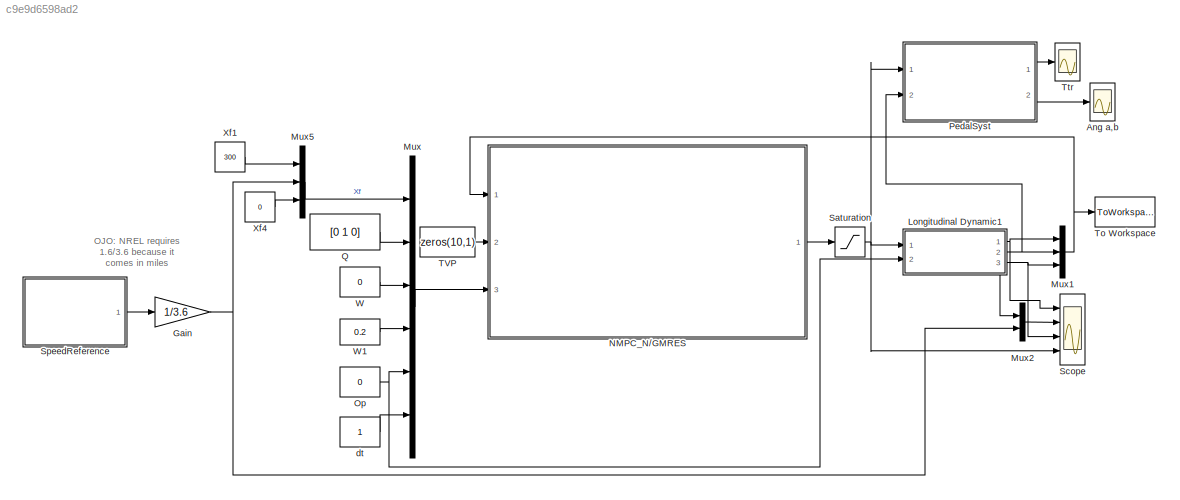
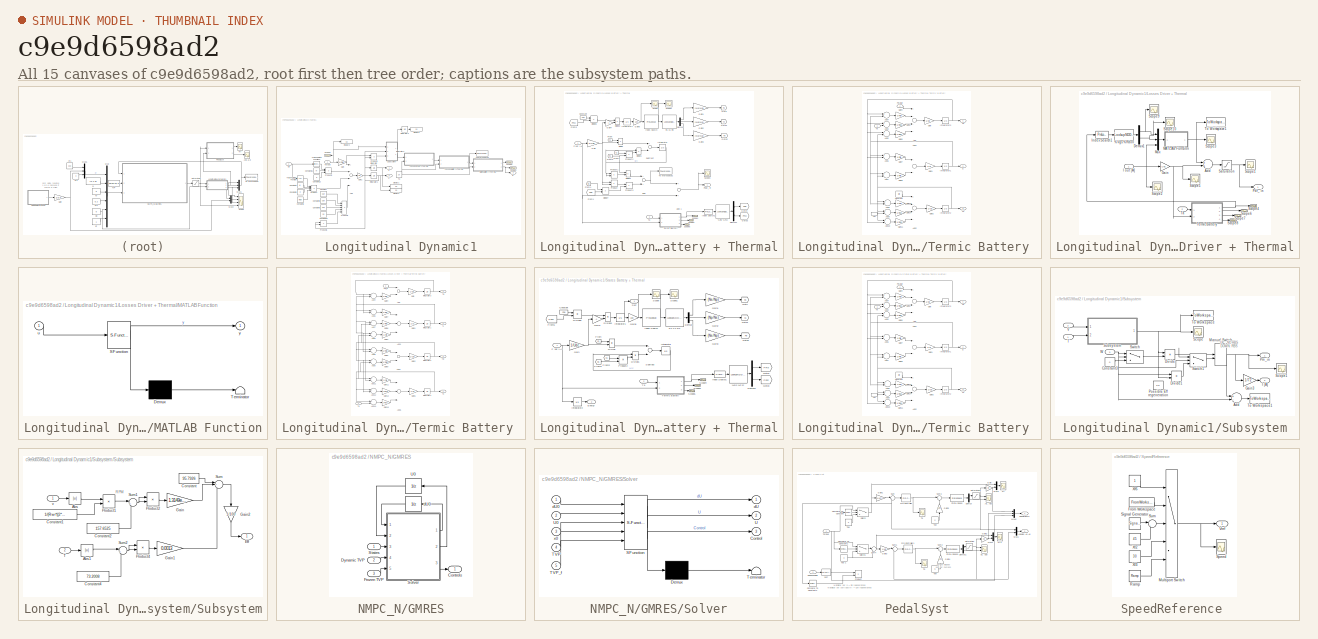
[diagram: thumbnail index - all 15 canvases of the model, root first then tree order]
MODEL slx_c9e9d6598ad2
KIND model
CONFIG AbsTol = auto
CONFIG EnableMultiTasking = on
CONFIG FixedStep = auto
CONFIG MaxStep = auto
CONFIG MinStep = auto
CONFIG RelTol = 1e-3
CONFIG SampleTimeConstraint = Unconstrained
CONFIG Solver = VariableStepAuto
CONFIG SolverName = VariableStepAuto
CONFIG StartTime = 0.0
CONFIG StopTime = 4000
BLOCK [Scope] Ang a,b
  Floating = off
  NumInputPorts = 1
  Ports = [1]
  ScopeSpecificationString = Simulink.scopes.TimeScopeBlockCfg('CurrentConfiguration', extmgr.ConfigurationSet(extmgr.Configuration('Core','General UI',true),extmgr.Configuration('Core','Source UI',true),extmgr.Configuration('Sources','WiredSimulink',true,'DataLoggingVariableName','ScopeData7'),extmgr.Configuration('Visuals','Time Domain',true,'SerializedDisplays',{struct('MinYLimReal','-15.85414','MaxYLimReal','57.31713','YL...<+1421ch>
BLOCK [Gain] Gain
  Gain = 1/3.6
  OutDataTypeStr = Inherit: Inherit via internal rule
  ParamDataTypeStr = Inherit: Inherit via internal rule
  SaturateOnIntegerOverflow = off
BLOCK [SubSystem] Longitudinal Dynamic1
  Ports = [2, 3]
  RequestExecContextInheritance = off
BLOCK [Sum] Longitudinal Dynamic1/Add
  InputSameDT = off
  Inputs = +---
  OutDataTypeStr = Inherit: Inherit via internal rule
  Ports = [4, 1]
  SaturateOnIntegerOverflow = off
BLOCK [Constant] Longitudinal Dynamic1/Constant
  Value = pair
BLOCK [Constant] Longitudinal Dynamic1/Constant10
  Value = 0.5
BLOCK [Constant] Longitudinal Dynamic1/Constant11
  Value = M
BLOCK [Constant] Longitudinal Dynamic1/Constant12
  Value = g
BLOCK [Constant] Longitudinal Dynamic1/Constant4
  Value = M
BLOCK [Constant] Longitudinal Dynamic1/Constant5
  Value = g
BLOCK [Constant] Longitudinal Dynamic1/Constant6
  Value = Miur0
BLOCK [Constant] Longitudinal Dynamic1/Constant8
  Value = Cair
BLOCK [Constant] Longitudinal Dynamic1/Constant9
  Value = Surf
BLOCK [Display] Longitudinal Dynamic1/Display1
  Decimation = 1
  Ports = [1]
BLOCK [Display] Longitudinal Dynamic1/Display2
  Decimation = 1
  Ports = [1]
BLOCK [Display] Longitudinal Dynamic1/Display3
  Decimation = 1
  Ports = [1]
BLOCK [Display] Longitudinal Dynamic1/Display5
  Decimation = 1
  Ports = [1]
BLOCK [Outport] Longitudinal Dynamic1/E
  IconDisplay = Port number
  Port = 3
BLOCK [Gain] Longitudinal Dynamic1/Gain
  Gain = 1/Rwr
  OutDataTypeStr = Inherit: Inherit via internal rule
  ParamDataTypeStr = Inherit: Inherit via internal rule
  SaturateOnIntegerOverflow = off
BLOCK [Gain] Longitudinal Dynamic1/Gain1
  Gain = 1/M
  OutDataTypeStr = Inherit: Inherit via internal rule
  ParamDataTypeStr = Inherit: Inherit via internal rule
  SaturateOnIntegerOverflow = off
BLOCK [Integrator] Longitudinal Dynamic1/Integrator
  Ports = [1, 1]
BLOCK [Integrator] Longitudinal Dynamic1/Integrator1
  Ports = [1, 1]
BLOCK [Integrator] Longitudinal Dynamic1/Integrator2
  Ports = [1, 1]
BLOCK [Integrator] Longitudinal Dynamic1/Integrator3
  Ports = [1, 1]
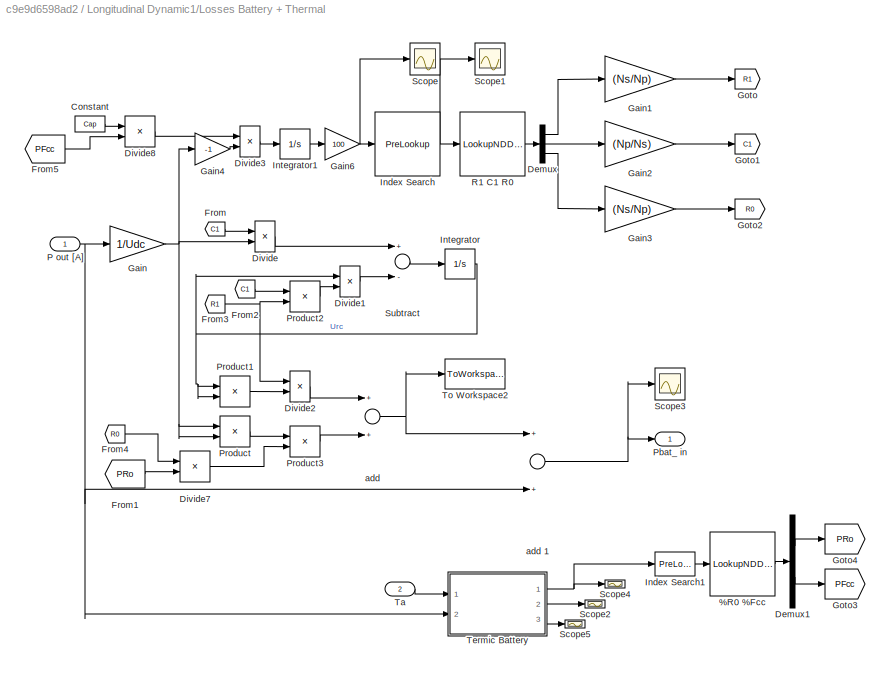
BLOCK [SubSystem] Longitudinal Dynamic1/Losses Battery + Thermal
  Ports = [2, 1]
  RequestExecContextInheritance = off
BLOCK [LookupNDDirect] Longitudinal Dynamic1/Losses Battery + Thermal/%R0 %Fcc 
  InputsSelectThisObjectFromTable = Vector
  Ports = [1, 1]
  Table = [7.33  0.71;\n4.97  0.75;\n3.58  0.78;\n2.69  0.82;\n2.07  0.86;\n1.63  0.89;\n1.30  0.93;\n1.14  0.97;\n1.00  1.00;\n0.91  1.04;\n0.84  1.07;\n0.77  1.09;]'
BLOCK [Constant] Longitudinal Dynamic1/Losses Battery + Thermal/Constant
  Value = Cap
BLOCK [Demux] Longitudinal Dynamic1/Losses Battery + Thermal/Demux
  DisplayOption = bar
  Outputs = 3
  Ports = [1, 3]
BLOCK [Demux] Longitudinal Dynamic1/Losses Battery + Thermal/Demux1
  DisplayOption = bar
  Outputs = 2
  Ports = [1, 2]
BLOCK [Product] Longitudinal Dynamic1/Losses Battery + Thermal/Divide
  InputSameDT = off
  Inputs = /*
  OutDataTypeStr = Inherit: Inherit via internal rule
  Ports = [2, 1]
  RndMeth = Floor
  SaturateOnIntegerOverflow = off
BLOCK [Product] Longitudinal Dynamic1/Losses Battery + Thermal/Divide1
  InputSameDT = off
  Inputs = */
  OutDataTypeStr = Inherit: Inherit via internal rule
  Ports = [2, 1]
  RndMeth = Floor
  SaturateOnIntegerOverflow = off
BLOCK [Product] Longitudinal Dynamic1/Losses Battery + Thermal/Divide2
  InputSameDT = off
  Inputs = /*
  OutDataTypeStr = Inherit: Inherit via internal rule
  Ports = [2, 1]
  RndMeth = Floor
  SaturateOnIntegerOverflow = off
BLOCK [Product] Longitudinal Dynamic1/Losses Battery + Thermal/Divide3
  InputSameDT = off
  Inputs = /*
  OutDataTypeStr = Inherit: Inherit via internal rule
  Ports = [2, 1]
  RndMeth = Floor
  SaturateOnIntegerOverflow = off
BLOCK [Product] Longitudinal Dynamic1/Losses Battery + Thermal/Divide7
  InputSameDT = off
  Inputs = **
  OutDataTypeStr = Inherit: Inherit via internal rule
  Ports = [2, 1]
  RndMeth = Floor
  SaturateOnIntegerOverflow = off
BLOCK [Product] Longitudinal Dynamic1/Losses Battery + Thermal/Divide8
  InputSameDT = off
  Inputs = **
  OutDataTypeStr = Inherit: Inherit via internal rule
  Ports = [2, 1]
  RndMeth = Floor
  SaturateOnIntegerOverflow = off
BLOCK [From] Longitudinal Dynamic1/Losses Battery + Thermal/From
  GotoTag = C1
BLOCK [From] Longitudinal Dynamic1/Losses Battery + Thermal/From1
  GotoTag = PRo
BLOCK [From] Longitudinal Dynamic1/Losses Battery + Thermal/From2
  GotoTag = C1
BLOCK [From] Longitudinal Dynamic1/Losses Battery + Thermal/From3
  GotoTag = R1
BLOCK [From] Longitudinal Dynamic1/Losses Battery + Thermal/From4
  GotoTag = R0
BLOCK [From] Longitudinal Dynamic1/Losses Battery + Thermal/From5
  GotoTag = PFcc
BLOCK [Gain] Longitudinal Dynamic1/Losses Battery + Thermal/Gain
  Gain = 1/Udc
  OutDataTypeStr = Inherit: Inherit via internal rule
  ParamDataTypeStr = Inherit: Inherit via internal rule
  SaturateOnIntegerOverflow = off
BLOCK [Gain] Longitudinal Dynamic1/Losses Battery + Thermal/Gain1
  Gain = (Ns/Np)
  OutDataTypeStr = Inherit: Inherit via internal rule
  ParamDataTypeStr = Inherit: Inherit via internal rule
  SaturateOnIntegerOverflow = off
BLOCK [Gain] Longitudinal Dynamic1/Losses Battery + Thermal/Gain2
  Gain = (Np/Ns)
  OutDataTypeStr = Inherit: Inherit via internal rule
  ParamDataTypeStr = Inherit: Inherit via internal rule
  SaturateOnIntegerOverflow = off
BLOCK [Gain] Longitudinal Dynamic1/Losses Battery + Thermal/Gain3
  Gain = (Ns/Np)
  OutDataTypeStr = Inherit: Inherit via internal rule
  ParamDataTypeStr = Inherit: Inherit via internal rule
  SaturateOnIntegerOverflow = off
BLOCK [Gain] Longitudinal Dynamic1/Losses Battery + Thermal/Gain4
  Gain = -1
  OutDataTypeStr = Inherit: Inherit via internal rule
  ParamDataTypeStr = Inherit: Inherit via internal rule
  SaturateOnIntegerOverflow = off
BLOCK [Gain] Longitudinal Dynamic1/Losses Battery + Thermal/Gain6
  Gain = 100
  OutDataTypeStr = Inherit: Inherit via internal rule
  ParamDataTypeStr = Inherit: Inherit via internal rule
  SaturateOnIntegerOverflow = off
BLOCK [Goto] Longitudinal Dynamic1/Losses Battery + Thermal/Goto
  GotoTag = R1
BLOCK [Goto] Longitudinal Dynamic1/Losses Battery + Thermal/Goto1
  GotoTag = C1
BLOCK [Goto] Longitudinal Dynamic1/Losses Battery + Thermal/Goto2
  GotoTag = R0
BLOCK [Goto] Longitudinal Dynamic1/Losses Battery + Thermal/Goto3
  GotoTag = PFcc
BLOCK [Goto] Longitudinal Dynamic1/Losses Battery + Thermal/Goto4
  GotoTag = PRo
BLOCK [PreLookup] Longitudinal Dynamic1/Losses Battery + Thermal/Index Search
  BreakpointsData = [2.273\n4.545\n6.818\n9.091\n11.364\n13.636\n15.909\n18.182\n20.455\n22.727\n25.000\n27.273\n29.545\n31.818\n34.091\n36.364\n38.636\n40.909\n43.182\n45.455\n47.727\n50.000\n52.273\n54.545\n56.818\n59.091\n61.364\n63.636\n65.909\n68.182\n70.455\n72.727\n75.000\n77.273\n79.545\n81.818\n84.091\n86.364\n88.636\n90.909\n93.182\n95.455\n97.727\n100.000]
  InputPortMap = u0
  OutputSelection = Index only
  Ports = [1, 1]
BLOCK [PreLookup] Longitudinal Dynamic1/Losses Battery + Thermal/Index Search1
  BreakpointsData = [-15 -10 -5 0  5 10  15 20 25 30 35 40]
  InputPortMap = u0
  OutputSelection = Index only
  Ports = [1, 1]
BLOCK [Integrator] Longitudinal Dynamic1/Losses Battery + Thermal/Integrator
  Ports = [1, 1]
BLOCK [Integrator] Longitudinal Dynamic1/Losses Battery + Thermal/Integrator1
  InitialCondition = 1
  Ports = [1, 1]
BLOCK [Inport] Longitudinal Dynamic1/Losses Battery + Thermal/P out [A]
  IconDisplay = Port number
BLOCK [Outport] Longitudinal Dynamic1/Losses Battery + Thermal/Pbat_ in
  IconDisplay = Port number
BLOCK [Product] Longitudinal Dynamic1/Losses Battery + Thermal/Product
  InputSameDT = off
  OutDataTypeStr = Inherit: Inherit via internal rule
  Ports = [2, 1]
  RndMeth = Floor
  SaturateOnIntegerOverflow = off
BLOCK [Product] Longitudinal Dynamic1/Losses Battery + Thermal/Product1
  InputSameDT = off
  OutDataTypeStr = Inherit: Inherit via internal rule
  Ports = [2, 1]
  RndMeth = Floor
  SaturateOnIntegerOverflow = off
BLOCK [Product] Longitudinal Dynamic1/Losses Battery + Thermal/Product2
  InputSameDT = off
  OutDataTypeStr = Inherit: Inherit via internal rule
  Ports = [2, 1]
  RndMeth = Floor
  SaturateOnIntegerOverflow = off
BLOCK [Product] Longitudinal Dynamic1/Losses Battery + Thermal/Product3
  InputSameDT = off
  OutDataTypeStr = Inherit: Inherit via internal rule
  Ports = [2, 1]
  RndMeth = Floor
  SaturateOnIntegerOverflow = off
BLOCK [LookupNDDirect] Longitudinal Dynamic1/Losses Battery + Thermal/R1 C1 R0 
  InputsSelectThisObjectFromTable = Vector
  Ports = [1, 1]
  Table = [0.046  1443.329 0.260;\n0.163	383.931	0.260;\n0.264	202.535	0.262;\n0.301	109.504	0.263;\n0.303	99.992	0.260;\n0.303	107.088	0.263;\n0.298	126.400	0.262;\n0.307	131.885	0.263;\n0.303	119.317	0.260;\n0.304	125.895	0.260;\n0.309	113.359	0.260;\n0.307	107.787	0.260;\n0.306	117.780	0.262;\n0.313	104.457	0.262;\n0.310	100.585	0.258;\n0.304	136.742	0.260;\n0.310	126.376	0.262;\n0.313	126.403	0.260;\n0.309	110.120	0.257;...<+514ch>
BLOCK [Scope] Longitudinal Dynamic1/Losses Battery + Thermal/Scope
  Floating = off
  NumInputPorts = 1
  Ports = [1]
  ScopeSpecificationString = Simulink.scopes.TimeScopeBlockCfg('CurrentConfiguration', extmgr.ConfigurationSet(extmgr.Configuration('Core','General UI',true),extmgr.Configuration('Core','Source UI',true),extmgr.Configuration('Sources','WiredSimulink',true,'DataLoggingVariableName','ScopeData10'),extmgr.Configuration('Visuals','Time Domain',true,'SerializedDisplays',{struct('MinYLimReal','99.93931','MaxYLimReal','100.00674','Y...<+1375ch>
BLOCK [Scope] Longitudinal Dynamic1/Losses Battery + Thermal/Scope1
  Floating = off
  NumInputPorts = 1
  Ports = [1]
  ScopeSpecificationString = Simulink.scopes.TimeScopeBlockCfg('CurrentConfiguration', extmgr.ConfigurationSet(extmgr.Configuration('Core','General UI',true),extmgr.Configuration('Core','Source UI',true),extmgr.Configuration('Sources','WiredSimulink',true,'DataLoggingVariableName','ScopeData11'),extmgr.Configuration('Visuals','Time Domain',true,'SerializedDisplays',{struct('MinYLimReal','41.875','MaxYLimReal','43.125','YLabel...<+1362ch>
BLOCK [Scope] Longitudinal Dynamic1/Losses Battery + Thermal/Scope2
  Floating = off
  NumInputPorts = 1
  Ports = [1]
  ScopeSpecificationString = C++SS(StrPVP('SaveName','ScopeData1'),StrPVP('LimitDataPoints','on'),StrPVP('DataFormat','Array'),StrPVP('Decimation','1'),StrPVP('BlockParamSampleInput','off'),StrPVP('SaveName','ScopeData1'),StrPVP('SaveName','ScopeData2'))
BLOCK [Scope] Longitudinal Dynamic1/Losses Battery + Thermal/Scope3
  Floating = off
  NumInputPorts = 1
  Ports = [1]
  ScopeSpecificationString = Simulink.scopes.TimeScopeBlockCfg('CurrentConfiguration', extmgr.ConfigurationSet(extmgr.Configuration('Core','General UI',true),extmgr.Configuration('Core','Source UI',true),extmgr.Configuration('Sources','WiredSimulink',true,'DataLoggingVariableName','ScopeData3','DataLoggingSaveFormat','StructureWithTime','DataLoggingDecimation','1','DataLoggingDecimateData',true),extmgr.Configuration('Visuals'...<+1660ch>
BLOCK [Scope] Longitudinal Dynamic1/Losses Battery + Thermal/Scope4
  Floating = off
  NumInputPorts = 1
  Ports = [1]
  ScopeSpecificationString = Simulink.scopes.TimeScopeBlockCfg('CurrentConfiguration', extmgr.ConfigurationSet(extmgr.Configuration('Core','General UI',true),extmgr.Configuration('Core','Source UI',true),extmgr.Configuration('Sources','WiredSimulink',true,'DataLoggingVariableName','ScopeData1','DataLoggingLimitDataPoints',true,'DataLoggingSaveFormat','Array','DataLoggingDecimation','1','DataLoggingDecimateData',true),extmgr.C...<+1530ch>
BLOCK [Scope] Longitudinal Dynamic1/Losses Battery + Thermal/Scope5
  Floating = off
  NumInputPorts = 1
  Ports = [1]
  ScopeSpecificationString = C++SS(StrPVP('SaveName','ScopeData1'),StrPVP('LimitDataPoints','on'),StrPVP('DataFormat','Array'),StrPVP('Decimation','1'),StrPVP('BlockParamSampleInput','off'),StrPVP('SaveName','ScopeData1'),StrPVP('SaveName','ScopeData2'),StrPVP('SaveName','ScopeData3'))
BLOCK [Sum] Longitudinal Dynamic1/Losses Battery + Thermal/Subtract
  InputSameDT = off
  Inputs = +-
  OutDataTypeStr = Inherit: Inherit via internal rule
  Ports = [2, 1]
  SaturateOnIntegerOverflow = off
BLOCK [Inport] Longitudinal Dynamic1/Losses Battery + Thermal/Ta
  IconDisplay = Port number
  Port = 2
BLOCK [SubSystem] Longitudinal Dynamic1/Losses Battery + Thermal/Termic Battery 
  Ports = [2, 3]
  RequestExecContextInheritance = off
BLOCK [Sum] Longitudinal Dynamic1/Losses Battery + Thermal/Termic Battery /Add
  InputSameDT = off
  Inputs = +---
  OutDataTypeStr = Inherit: Inherit via internal rule
  Ports = [4, 1]
  SaturateOnIntegerOverflow = off
BLOCK [Sum] Longitudinal Dynamic1/Losses Battery + Thermal/Termic Battery /Add1
  InputSameDT = off
  Inputs = --
  OutDataTypeStr = Inherit: Inherit via internal rule
  Ports = [2, 1]
  SaturateOnIntegerOverflow = off
BLOCK [Sum] Longitudinal Dynamic1/Losses Battery + Thermal/Termic Battery /Add10
  InputSameDT = off
  Inputs = +-
  OutDataTypeStr = Inherit: Inherit via internal rule
  Ports = [2, 1]
  SaturateOnIntegerOverflow = off
BLOCK [Sum] Longitudinal Dynamic1/Losses Battery + Thermal/Termic Battery /Add2
  InputSameDT = off
  Inputs = +---
  OutDataTypeStr = Inherit: Inherit via internal rule
  Ports = [4, 1]
  SaturateOnIntegerOverflow = off
BLOCK [Sum] Longitudinal Dynamic1/Losses Battery + Thermal/Termic Battery /Add3
  InputSameDT = off
  Inputs = +-
  OutDataTypeStr = Inherit: Inherit via internal rule
  Ports = [2, 1]
  SaturateOnIntegerOverflow = off
BLOCK [Sum] Longitudinal Dynamic1/Losses Battery + Thermal/Termic Battery /Add4
  InputSameDT = off
  Inputs = +-
  OutDataTypeStr = Inherit: Inherit via internal rule
  Ports = [2, 1]
  SaturateOnIntegerOverflow = off
BLOCK [Sum] Longitudinal Dynamic1/Losses Battery + Thermal/Termic Battery /Add5
  InputSameDT = off
  Inputs = +-
  OutDataTypeStr = Inherit: Inherit via internal rule
  Ports = [2, 1]
  SaturateOnIntegerOverflow = off
BLOCK [Sum] Longitudinal Dynamic1/Losses Battery + Thermal/Termic Battery /Add6
  InputSameDT = off
  Inputs = +-
  OutDataTypeStr = Inherit: Inherit via internal rule
  Ports = [2, 1]
  SaturateOnIntegerOverflow = off
BLOCK [Sum] Longitudinal Dynamic1/Losses Battery + Thermal/Termic Battery /Add7
  InputSameDT = off
  Inputs = +-
  OutDataTypeStr = Inherit: Inherit via internal rule
  Ports = [2, 1]
  SaturateOnIntegerOverflow = off
BLOCK [Sum] Longitudinal Dynamic1/Losses Battery + Thermal/Termic Battery /Add8
  InputSameDT = off
  Inputs = +-
  OutDataTypeStr = Inherit: Inherit via internal rule
  Ports = [2, 1]
  SaturateOnIntegerOverflow = off
BLOCK [Sum] Longitudinal Dynamic1/Losses Battery + Thermal/Termic Battery /Add9
  InputSameDT = off
  Inputs = +-
  OutDataTypeStr = Inherit: Inherit via internal rule
  Ports = [2, 1]
  SaturateOnIntegerOverflow = off
BLOCK [Constant] Longitudinal Dynamic1/Losses Battery + Thermal/Termic Battery /Constant
  Value = Qrd
BLOCK [Gain] Longitudinal Dynamic1/Losses Battery + Thermal/Termic Battery /Gain
  Gain = 1/Cb
  OutDataTypeStr = Inherit: Inherit via internal rule
  ParamDataTypeStr = Inherit: Inherit via internal rule
  SaturateOnIntegerOverflow = off
BLOCK [Gain] Longitudinal Dynamic1/Losses Battery + Thermal/Termic Battery /Gain1
  Gain = 1/Ci
  OutDataTypeStr = Inherit: Inherit via internal rule
  ParamDataTypeStr = Inherit: Inherit via internal rule
  SaturateOnIntegerOverflow = off
BLOCK [Gain] Longitudinal Dynamic1/Losses Battery + Thermal/Termic Battery /Gain11
  Gain = 1/Rob
  OutDataTypeStr = Inherit: Inherit via internal rule
  ParamDataTypeStr = Inherit: Inherit via internal rule
  SaturateOnIntegerOverflow = off
BLOCK [Gain] Longitudinal Dynamic1/Losses Battery + Thermal/Termic Battery /Gain13
  Gain = 1/Roi
  OutDataTypeStr = Inherit: Inherit via internal rule
  ParamDataTypeStr = Inherit: Inherit via internal rule
  SaturateOnIntegerOverflow = off
BLOCK [Gain] Longitudinal Dynamic1/Losses Battery + Thermal/Termic Battery /Gain14
  Gain = 1/Roa
  OutDataTypeStr = Inherit: Inherit via internal rule
  ParamDataTypeStr = Inherit: Inherit via internal rule
  SaturateOnIntegerOverflow = off
BLOCK [Gain] Longitudinal Dynamic1/Losses Battery + Thermal/Termic Battery /Gain2
  Gain = 1/Co
  OutDataTypeStr = Inherit: Inherit via internal rule
  ParamDataTypeStr = Inherit: Inherit via internal rule
  SaturateOnIntegerOverflow = off
BLOCK [Gain] Longitudinal Dynamic1/Losses Battery + Thermal/Termic Battery /Gain4
  Gain = 1/Rbi
  OutDataTypeStr = Inherit: Inherit via internal rule
  ParamDataTypeStr = Inherit: Inherit via internal rule
  SaturateOnIntegerOverflow = off
BLOCK [Gain] Longitudinal Dynamic1/Losses Battery + Thermal/Termic Battery /Gain5
  Gain = 1/Rba
  OutDataTypeStr = Inherit: Inherit via internal rule
  ParamDataTypeStr = Inherit: Inherit via internal rule
  SaturateOnIntegerOverflow = off
BLOCK [Gain] Longitudinal Dynamic1/Losses Battery + Thermal/Termic Battery /Gain6
  Gain = 1/Rbo
  OutDataTypeStr = Inherit: Inherit via internal rule
  ParamDataTypeStr = Inherit: Inherit via internal rule
  SaturateOnIntegerOverflow = off
BLOCK [Gain] Longitudinal Dynamic1/Losses Battery + Thermal/Termic Battery /Gain7
  Gain = 1/Rib
  OutDataTypeStr = Inherit: Inherit via internal rule
  ParamDataTypeStr = Inherit: Inherit via internal rule
  SaturateOnIntegerOverflow = off
BLOCK [Gain] Longitudinal Dynamic1/Losses Battery + Thermal/Termic Battery /Gain8
  Gain = 1/Rio
  OutDataTypeStr = Inherit: Inherit via internal rule
  ParamDataTypeStr = Inherit: Inherit via internal rule
  SaturateOnIntegerOverflow = off
BLOCK [Integrator] Longitudinal Dynamic1/Losses Battery + Thermal/Termic Battery /Integrator1
  InitialCondition = Ti0
  Ports = [1, 1]
BLOCK [Integrator] Longitudinal Dynamic1/Losses Battery + Thermal/Termic Battery /Integrator2
  InitialCondition = To0
  Ports = [1, 1]
BLOCK [Integrator] Longitudinal Dynamic1/Losses Battery + Thermal/Termic Battery /Integrator3
  InitialCondition = Tb0
  Ports = [1, 1]
BLOCK [Inport] Longitudinal Dynamic1/Losses Battery + Thermal/Termic Battery /Pw_Bat
  IconDisplay = Port number
  Port = 2
BLOCK [Inport] Longitudinal Dynamic1/Losses Battery + Thermal/Termic Battery /Ta
  IconDisplay = Port number
BLOCK [InportShadow] Longitudinal Dynamic1/Losses Battery + Thermal/Termic Battery /Ta1
  IconDisplay = Port number
BLOCK [Outport] Longitudinal Dynamic1/Losses Battery + Thermal/Termic Battery /Tb
  IconDisplay = Port number
BLOCK [Outport] Longitudinal Dynamic1/Losses Battery + Thermal/Termic Battery /Ti
  IconDisplay = Port number
  Port = 2
BLOCK [Outport] Longitudinal Dynamic1/Losses Battery + Thermal/Termic Battery /To
  IconDisplay = Port number
  Port = 3
BLOCK [ToWorkspace] Longitudinal Dynamic1/Losses Battery + Thermal/To Workspace2
  FixptAsFi = on
  MaxDataPoints = inf
  Ports = [1]
  SampleTime = -1
  Save2DSignal = 3-D array (concatenate along third dimension)
  SaveFormat = Timeseries
  VariableName = BatteryLosses
BLOCK [Sum] Longitudinal Dynamic1/Losses Battery + Thermal/add 
  InputSameDT = off
  OutDataTypeStr = Inherit: Inherit via internal rule
  Ports = [2, 1]
  SaturateOnIntegerOverflow = off
BLOCK [Sum] Longitudinal Dynamic1/Losses Battery + Thermal/add 1
  InputSameDT = off
  OutDataTypeStr = Inherit: Inherit via internal rule
  Ports = [2, 1]
  SaturateOnIntegerOverflow = off
BLOCK [SubSystem] Longitudinal Dynamic1/Losses Driver + Thermal
  Ports = [2, 1]
  RequestExecContextInheritance = off
BLOCK [LookupNDDirect] Longitudinal Dynamic1/Losses Driver + Thermal/%Vgs %Rdon 
  InputsSelectThisObjectFromTable = Vector
  Ports = [1, 1]
  Table = [0.80   1.4;\n0.82   1.4;\n0.85   1.3;\n0.87   1.3;\n0.90   1.2;\n0.92   1.2;\n0.95   1.1;\n0.97   1.1;\n1.00   1.0;\n1.05   0.99;\n1.08   0.99;\n1.11   0.98;\n1.13   0.98;\n1.15   0.97;\n1.20   0.97;\n1.22   0.96;\n1.25   0.95;\n1.27   0.94;\n1.30   0.93;\n1.35   0.92;\n1.40   0.91;\n1.45   0.90;\n1.50   0.89;\n1.55   0.88;\n1.60   0.87;\n1.65   0.86;\n1.70   0.85;\n1.75   0.84;\n1.80   0.83;\n1.85   0.81;\n1.90   0.79;\n1.95 ...<+48ch>
BLOCK [Sum] Longitudinal Dynamic1/Losses Driver + Thermal/Add
  InputSameDT = off
  OutDataTypeStr = Inherit: Inherit via internal rule
  Ports = [2, 1]
  SaturateOnIntegerOverflow = off
BLOCK [Demux] Longitudinal Dynamic1/Losses Driver + Thermal/Demux1
  DisplayOption = bar
  Outputs = 2
  Ports = [1, 2]
BLOCK [Gain] Longitudinal Dynamic1/Losses Driver + Thermal/Gain
  Gain = Udc
  OutDataTypeStr = Inherit: Inherit via internal rule
  ParamDataTypeStr = Inherit: Inherit via internal rule
  SaturateOnIntegerOverflow = off
BLOCK [Inport] Longitudinal Dynamic1/Losses Driver + Thermal/I out [A]
  IconDisplay = Port number
BLOCK [PreLookup] Longitudinal Dynamic1/Losses Driver + Thermal/Index Search1
  BreakpointsData = [-15:5:155]
  InputPortMap = u0
  OutputSelection = Index only
  Ports = [1, 1]
BLOCK [SubSystem] Longitudinal Dynamic1/Losses Driver + Thermal/MATLAB Function
  ErrorFcn = Stateflow.Translate.translate
  PermitHierarchicalResolution = ExplicitOnly
  Ports = [1, 1]
  RequestExecContextInheritance = off
  SFBlockType = MATLAB Function
  TreatAsAtomicUnit = on
BLOCK [Demux] Longitudinal Dynamic1/Losses Driver + Thermal/MATLAB Function/ Demux 
  Outputs = 1
  Ports = [1, 1]
BLOCK [S-Function] Longitudinal Dynamic1/Losses Driver + Thermal/MATLAB Function/ SFunction 
  EnableBusSupport = on
  FunctionName = sf_sfun
  PortCounts = [1 2]
  Ports = [1, 2]
  SFcnIsStateOwnerBlock = off
  SFunctionDeploymentMode = off
  Tag = Stateflow S-Function NMPCLib 1
BLOCK [Terminator] Longitudinal Dynamic1/Losses Driver + Thermal/MATLAB Function/ Terminator 
BLOCK [Inport] Longitudinal Dynamic1/Losses Driver + Thermal/MATLAB Function/u
  IconDisplay = Port number
BLOCK [Outport] Longitudinal Dynamic1/Losses Driver + Thermal/MATLAB Function/y
  IconDisplay = Port number
BLOCK [Mux] Longitudinal Dynamic1/Losses Driver + Thermal/Mux
  DisplayOption = bar
  Inputs = 3
  Ports = [3, 1]
BLOCK [Outport] Longitudinal Dynamic1/Losses Driver + Thermal/Pdr_ in
  IconDisplay = Port number
BLOCK [Saturate] Longitudinal Dynamic1/Losses Driver + Thermal/Saturation
  InputPortMap = u0
  LowerLimit = -5000
  Ports = [1, 1]
  UpperLimit = 4000
BLOCK [Scope] Longitudinal Dynamic1/Losses Driver + Thermal/Scope1
  Floating = off
  NumInputPorts = 1
  Ports = [1]
  ScopeSpecificationString = Simulink.scopes.TimeScopeBlockCfg('CurrentConfiguration', extmgr.ConfigurationSet(extmgr.Configuration('Core','General UI',true),extmgr.Configuration('Core','Source UI',true),extmgr.Configuration('Sources','WiredSimulink',true,'DataLoggingVariableName','ScopeData4','DataLoggingSaveFormat','StructureWithTime','DataLoggingDecimation','1','DataLoggingDecimateData',true),extmgr.Configuration('Visuals'...<+1661ch>
BLOCK [Scope] Longitudinal Dynamic1/Losses Driver + Thermal/Scope10
  Floating = off
  NumInputPorts = 1
  Ports = [1]
  ScopeSpecificationString = Simulink.scopes.TimeScopeBlockCfg('CurrentConfiguration', extmgr.ConfigurationSet(extmgr.Configuration('Core','General UI',true),extmgr.Configuration('Core','Source UI',true),extmgr.Configuration('Sources','WiredSimulink',true,'DataLoggingVariableName','ScopeData6','DataLoggingSaveFormat','StructureWithTime','DataLoggingDecimation','1','DataLoggingDecimateData',true),extmgr.Configuration('Visuals'...<+1635ch>
BLOCK [Scope] Longitudinal Dynamic1/Losses Driver + Thermal/Scope2
  Floating = off
  NumInputPorts = 1
  Ports = [1]
  ScopeSpecificationString = Simulink.scopes.TimeScopeBlockCfg('CurrentConfiguration', extmgr.ConfigurationSet(extmgr.Configuration('Core','General UI',true),extmgr.Configuration('Core','Source UI',true),extmgr.Configuration('Sources','WiredSimulink',true,'DataLoggingVariableName','ScopeData9','DataLoggingSaveFormat','StructureWithTime','DataLoggingDecimation','1','DataLoggingDecimateData',true),extmgr.Configuration('Visuals'...<+1650ch>
BLOCK [Scope] Longitudinal Dynamic1/Losses Driver + Thermal/Scope3
  Floating = off
  NumInputPorts = 1
  Ports = [1]
  ScopeSpecificationString = Simulink.scopes.TimeScopeBlockCfg('CurrentConfiguration', extmgr.ConfigurationSet(extmgr.Configuration('Core','General UI',true),extmgr.Configuration('Core','Source UI',true),extmgr.Configuration('Sources','WiredSimulink',true,'DataLoggingVariableName','ScopeData3','DataLoggingSaveFormat','StructureWithTime','DataLoggingDecimation','1','DataLoggingDecimateData',true),extmgr.Configuration('Visuals'...<+1662ch>
BLOCK [Scope] Longitudinal Dynamic1/Losses Driver + Thermal/Scope4
  Floating = off
  NumInputPorts = 1
  Ports = [1]
  ScopeSpecificationString = Simulink.scopes.TimeScopeBlockCfg('CurrentConfiguration', extmgr.ConfigurationSet(extmgr.Configuration('Core','General UI',true),extmgr.Configuration('Core','Source UI',true),extmgr.Configuration('Sources','WiredSimulink',true,'DataLoggingVariableName','ScopeData1','DataLoggingLimitDataPoints',true,'DataLoggingSaveFormat','Array','DataLoggingDecimation','1','DataLoggingDecimateData',true),extmgr.C...<+1538ch>
BLOCK [Scope] Longitudinal Dynamic1/Losses Driver + Thermal/Scope5
  Floating = off
  NumInputPorts = 1
  Ports = [1]
  ScopeSpecificationString = Simulink.scopes.TimeScopeBlockCfg('CurrentConfiguration', extmgr.ConfigurationSet(extmgr.Configuration('Core','General UI',true),extmgr.Configuration('Core','Source UI',true),extmgr.Configuration('Sources','WiredSimulink',true,'DataLoggingVariableName','ScopeData8','DataLoggingSaveFormat','StructureWithTime','DataLoggingDecimation','1','DataLoggingDecimateData',true),extmgr.Configuration('Visuals'...<+1659ch>
BLOCK [Scope] Longitudinal Dynamic1/Losses Driver + Thermal/Scope6
  Floating = off
  NumInputPorts = 1
  Ports = [1]
  ScopeSpecificationString = Simulink.scopes.TimeScopeBlockCfg('CurrentConfiguration', extmgr.ConfigurationSet(extmgr.Configuration('Core','General UI',true),extmgr.Configuration('Core','Source UI',true),extmgr.Configuration('Sources','WiredSimulink',true,'DataLoggingVariableName','ScopeData2','DataLoggingLimitDataPoints',true,'DataLoggingSaveFormat','Array','DataLoggingDecimation','1','DataLoggingDecimateData',true),extmgr.C...<+1538ch>
BLOCK [Scope] Longitudinal Dynamic1/Losses Driver + Thermal/Scope7
  Floating = off
  NumInputPorts = 1
  Ports = [1]
  ScopeSpecificationString = Simulink.scopes.TimeScopeBlockCfg('CurrentConfiguration', extmgr.ConfigurationSet(extmgr.Configuration('Core','General UI',true),extmgr.Configuration('Core','Source UI',true),extmgr.Configuration('Sources','WiredSimulink',true,'DataLoggingVariableName','ScopeData3','DataLoggingLimitDataPoints',true,'DataLoggingSaveFormat','Array','DataLoggingDecimation','1','DataLoggingDecimateData',true),extmgr.C...<+1507ch>
BLOCK [Scope] Longitudinal Dynamic1/Losses Driver + Thermal/Scope8
  Floating = off
  NumInputPorts = 1
  Ports = [1]
  ScopeSpecificationString = Simulink.scopes.TimeScopeBlockCfg('CurrentConfiguration', extmgr.ConfigurationSet(extmgr.Configuration('Core','General UI',true),extmgr.Configuration('Core','Source UI',true),extmgr.Configuration('Sources','WiredSimulink',true,'DataLoggingVariableName','ScopeData4','DataLoggingLimitDataPoints',true,'DataLoggingSaveFormat','Array','DataLoggingDecimation','1','DataLoggingDecimateData',true),extmgr.C...<+1503ch>
BLOCK [Scope] Longitudinal Dynamic1/Losses Driver + Thermal/Scope9
  Floating = off
  NumInputPorts = 1
  Ports = [1]
  ScopeSpecificationString = Simulink.scopes.TimeScopeBlockCfg('CurrentConfiguration', extmgr.ConfigurationSet(extmgr.Configuration('Core','General UI',true),extmgr.Configuration('Core','Source UI',true),extmgr.Configuration('Sources','WiredSimulink',true,'DataLoggingVariableName','ScopeData5','DataLoggingSaveFormat','StructureWithTime','DataLoggingDecimation','1','DataLoggingDecimateData',true),extmgr.Configuration('Visuals'...<+1635ch>
BLOCK [Inport] Longitudinal Dynamic1/Losses Driver + Thermal/Ta
  IconDisplay = Port number
  Port = 2
BLOCK [SubSystem] Longitudinal Dynamic1/Losses Driver + Thermal/Termic Battery 
  Ports = [2, 4]
  RequestExecContextInheritance = off
BLOCK [Sum] Longitudinal Dynamic1/Losses Driver + Thermal/Termic Battery /Add
  InputSameDT = off
  Inputs = +-
  OutDataTypeStr = Inherit: Inherit via internal rule
  Ports = [2, 1]
  SaturateOnIntegerOverflow = off
BLOCK [Sum] Longitudinal Dynamic1/Losses Driver + Thermal/Termic Battery /Add1
  InputSameDT = off
  Inputs = ---
  OutDataTypeStr = Inherit: Inherit via internal rule
  Ports = [3, 1]
  SaturateOnIntegerOverflow = off
BLOCK [Sum] Longitudinal Dynamic1/Losses Driver + Thermal/Termic Battery /Add10
  InputSameDT = off
  Inputs = +-
  OutDataTypeStr = Inherit: Inherit via internal rule
  Ports = [2, 1]
  SaturateOnIntegerOverflow = off
BLOCK [Sum] Longitudinal Dynamic1/Losses Driver + Thermal/Termic Battery /Add11
  InputSameDT = off
  Inputs = +-
  OutDataTypeStr = Inherit: Inherit via internal rule
  Ports = [2, 1]
  SaturateOnIntegerOverflow = off
BLOCK [Sum] Longitudinal Dynamic1/Losses Driver + Thermal/Termic Battery /Add12
  InputSameDT = off
  Inputs = +-
  OutDataTypeStr = Inherit: Inherit via internal rule
  Ports = [2, 1]
  SaturateOnIntegerOverflow = off
BLOCK [Sum] Longitudinal Dynamic1/Losses Driver + Thermal/Termic Battery /Add2
  InputSameDT = off
  Inputs = --
  OutDataTypeStr = Inherit: Inherit via internal rule
  Ports = [2, 1]
  SaturateOnIntegerOverflow = off
BLOCK [Sum] Longitudinal Dynamic1/Losses Driver + Thermal/Termic Battery /Add3
  InputSameDT = off
  Inputs = +-
  OutDataTypeStr = Inherit: Inherit via internal rule
  Ports = [2, 1]
  SaturateOnIntegerOverflow = off
BLOCK [Sum] Longitudinal Dynamic1/Losses Driver + Thermal/Termic Battery /Add4
  InputSameDT = off
  Inputs = +-
  OutDataTypeStr = Inherit: Inherit via internal rule
  Ports = [2, 1]
  SaturateOnIntegerOverflow = off
BLOCK [Sum] Longitudinal Dynamic1/Losses Driver + Thermal/Termic Battery /Add5
  InputSameDT = off
  Inputs = ---
  OutDataTypeStr = Inherit: Inherit via internal rule
  Ports = [3, 1]
  SaturateOnIntegerOverflow = off
BLOCK [Sum] Longitudinal Dynamic1/Losses Driver + Thermal/Termic Battery /Add6
  InputSameDT = off
  Inputs = +-
  OutDataTypeStr = Inherit: Inherit via internal rule
  Ports = [2, 1]
  SaturateOnIntegerOverflow = off
BLOCK [Sum] Longitudinal Dynamic1/Losses Driver + Thermal/Termic Battery /Add7
  InputSameDT = off
  Inputs = +-
  OutDataTypeStr = Inherit: Inherit via internal rule
  Ports = [2, 1]
  SaturateOnIntegerOverflow = off
BLOCK [Sum] Longitudinal Dynamic1/Losses Driver + Thermal/Termic Battery /Add8
  InputSameDT = off
  Inputs = +-
  OutDataTypeStr = Inherit: Inherit via internal rule
  Ports = [2, 1]
  SaturateOnIntegerOverflow = off
BLOCK [Sum] Longitudinal Dynamic1/Losses Driver + Thermal/Termic Battery /Add9
  InputSameDT = off
  Inputs = +-
  OutDataTypeStr = Inherit: Inherit via internal rule
  Ports = [2, 1]
  SaturateOnIntegerOverflow = off
BLOCK [Gain] Longitudinal Dynamic1/Losses Driver + Thermal/Termic Battery /Gain
  Gain = 1/Cd
  OutDataTypeStr = Inherit: Inherit via internal rule
  ParamDataTypeStr = Inherit: Inherit via internal rule
  SaturateOnIntegerOverflow = off
BLOCK [Gain] Longitudinal Dynamic1/Losses Driver + Thermal/Termic Battery /Gain1
  Gain = 1/Cl
  OutDataTypeStr = Inherit: Inherit via internal rule
  ParamDataTypeStr = Inherit: Inherit via internal rule
  SaturateOnIntegerOverflow = off
BLOCK [Gain] Longitudinal Dynamic1/Losses Driver + Thermal/Termic Battery /Gain10
  Gain = 1/Rca
  OutDataTypeStr = Inherit: Inherit via internal rule
  ParamDataTypeStr = Inherit: Inherit via internal rule
  SaturateOnIntegerOverflow = off
BLOCK [Gain] Longitudinal Dynamic1/Losses Driver + Thermal/Termic Battery /Gain11
  Gain = 1/Rlc
  OutDataTypeStr = Inherit: Inherit via internal rule
  ParamDataTypeStr = Inherit: Inherit via internal rule
  SaturateOnIntegerOverflow = off
BLOCK [Gain] Longitudinal Dynamic1/Losses Driver + Thermal/Termic Battery /Gain12
  Gain = 1/Rcai
  OutDataTypeStr = Inherit: Inherit via internal rule
  ParamDataTypeStr = Inherit: Inherit via internal rule
  SaturateOnIntegerOverflow = off
BLOCK [Gain] Longitudinal Dynamic1/Losses Driver + Thermal/Termic Battery /Gain2
  Gain = 1/Cai
  OutDataTypeStr = Inherit: Inherit via internal rule
  ParamDataTypeStr = Inherit: Inherit via internal rule
  SaturateOnIntegerOverflow = off
BLOCK [Gain] Longitudinal Dynamic1/Losses Driver + Thermal/Termic Battery /Gain3
  Gain = 1/Rlc
  OutDataTypeStr = Inherit: Inherit via internal rule
  ParamDataTypeStr = Inherit: Inherit via internal rule
  SaturateOnIntegerOverflow = off
BLOCK [Gain] Longitudinal Dynamic1/Losses Driver + Thermal/Termic Battery /Gain4
  Gain = 1/Rdl
  OutDataTypeStr = Inherit: Inherit via internal rule
  ParamDataTypeStr = Inherit: Inherit via internal rule
  SaturateOnIntegerOverflow = off
BLOCK [Gain] Longitudinal Dynamic1/Losses Driver + Thermal/Termic Battery /Gain5
  Gain = 1/Cc
  OutDataTypeStr = Inherit: Inherit via internal rule
  ParamDataTypeStr = Inherit: Inherit via internal rule
  SaturateOnIntegerOverflow = off
BLOCK [Gain] Longitudinal Dynamic1/Losses Driver + Thermal/Termic Battery /Gain6
  Gain = 1/Rail
  OutDataTypeStr = Inherit: Inherit via internal rule
  ParamDataTypeStr = Inherit: Inherit via internal rule
  SaturateOnIntegerOverflow = off
BLOCK [Gain] Longitudinal Dynamic1/Losses Driver + Thermal/Termic Battery /Gain7
  Gain = 1/Rdl
  OutDataTypeStr = Inherit: Inherit via internal rule
  ParamDataTypeStr = Inherit: Inherit via internal rule
  SaturateOnIntegerOverflow = off
BLOCK [Gain] Longitudinal Dynamic1/Losses Driver + Thermal/Termic Battery /Gain8
  Gain = 1/Rlai
  OutDataTypeStr = Inherit: Inherit via internal rule
  ParamDataTypeStr = Inherit: Inherit via internal rule
  SaturateOnIntegerOverflow = off
BLOCK [Gain] Longitudinal Dynamic1/Losses Driver + Thermal/Termic Battery /Gain9
  Gain = 1/Raic
  OutDataTypeStr = Inherit: Inherit via internal rule
  ParamDataTypeStr = Inherit: Inherit via internal rule
  SaturateOnIntegerOverflow = off
BLOCK [Integrator] Longitudinal Dynamic1/Losses Driver + Thermal/Termic Battery /Integrator1
  InitialCondition = Tl0
  Ports = [1, 1]
BLOCK [Integrator] Longitudinal Dynamic1/Losses Driver + Thermal/Termic Battery /Integrator2
  InitialCondition = Tai0
  Ports = [1, 1]
BLOCK [Integrator] Longitudinal Dynamic1/Losses Driver + Thermal/Termic Battery /Integrator3
  InitialCondition = Td0
  Ports = [1, 1]
BLOCK [Integrator] Longitudinal Dynamic1/Losses Driver + Thermal/Termic Battery /Integrator4
  InitialCondition = Tc0
  Ports = [1, 1]
BLOCK [Inport] Longitudinal Dynamic1/Losses Driver + Thermal/Termic Battery /Pw_in
  IconDisplay = Port number
  Port = 2
BLOCK [Inport] Longitudinal Dynamic1/Losses Driver + Thermal/Termic Battery /Ta
  IconDisplay = Port number
BLOCK [Outport] Longitudinal Dynamic1/Losses Driver + Thermal/Termic Battery /Tai
  IconDisplay = Port number
  Port = 3
BLOCK [Outport] Longitudinal Dynamic1/Losses Driver + Thermal/Termic Battery /Tc
  IconDisplay = Port number
  Port = 4
BLOCK [Outport] Longitudinal Dynamic1/Losses Driver + Thermal/Termic Battery /Td
  IconDisplay = Port number
BLOCK [Outport] Longitudinal Dynamic1/Losses Driver + Thermal/Termic Battery /Tl
  IconDisplay = Port number
  Port = 2
BLOCK [ToWorkspace] Longitudinal Dynamic1/Losses Driver + Thermal/To Workspace1
  FixptAsFi = on
  MaxDataPoints = inf
  Ports = [1]
  SampleTime = -1
  Save2DSignal = 3-D array (concatenate along third dimension)
  SaveFormat = Timeseries
  VariableName = DriverLosses
BLOCK [Inport] Longitudinal Dynamic1/Op 
  IconDisplay = Port number
  Port = 2
BLOCK [Product] Longitudinal Dynamic1/Product
  InputSameDT = off
  Inputs = 4
  OutDataTypeStr = Inherit: Inherit via internal rule
  Ports = [4, 1]
  RndMeth = Floor
  SaturateOnIntegerOverflow = off
BLOCK [Product] Longitudinal Dynamic1/Product1
  InputSameDT = off
  OutDataTypeStr = Inherit: Inherit via internal rule
  Ports = [2, 1]
  RndMeth = Floor
  SaturateOnIntegerOverflow = off
BLOCK [Product] Longitudinal Dynamic1/Product2
  InputSameDT = off
  Inputs = 5
  OutDataTypeStr = Inherit: Inherit via internal rule
  Ports = [5, 1]
  RndMeth = Floor
  SaturateOnIntegerOverflow = off
BLOCK [Product] Longitudinal Dynamic1/Product4
  InputSameDT = off
  Inputs = 3
  OutDataTypeStr = Inherit: Inherit via internal rule
  Ports = [3, 1]
  RndMeth = Floor
  SaturateOnIntegerOverflow = off
BLOCK [Product] Longitudinal Dynamic1/Product5
  InputSameDT = off
  OutDataTypeStr = Inherit: Inherit via internal rule
  Ports = [2, 1]
  RndMeth = Floor
  SaturateOnIntegerOverflow = off
BLOCK [Scope] Longitudinal Dynamic1/Scope3
  Floating = off
  NumInputPorts = 1
  Ports = [1]
  ScopeSpecificationString = Simulink.scopes.TimeScopeBlockCfg('CurrentConfiguration', extmgr.ConfigurationSet(extmgr.Configuration('Core','General UI',true),extmgr.Configuration('Core','Source UI',true),extmgr.Configuration('Sources','WiredSimulink',true,'DataLoggingVariableName','ScopeData1','DataLoggingLimitDataPoints',true,'DataLoggingSaveFormat','Array','DataLoggingDecimation','1','DataLoggingDecimateData',true),extmgr.C...<+165ch>
BLOCK [Scope] Longitudinal Dynamic1/Scope5
  Floating = off
  NumInputPorts = 1
  Ports = [1]
  ScopeSpecificationString = Simulink.scopes.TimeScopeBlockCfg('CurrentConfiguration', extmgr.ConfigurationSet(extmgr.Configuration('Core','General UI',true),extmgr.Configuration('Core','Source UI',true),extmgr.Configuration('Sources','WiredSimulink',true,'DataLoggingVariableName','ScopeData4','DataLoggingSaveFormat','StructureWithTime','DataLoggingDecimation','1','DataLoggingDecimateData',true),extmgr.Configuration('Visuals'...<+1676ch>
BLOCK [Scope] Longitudinal Dynamic1/Scope9
  Floating = off
  NumInputPorts = 1
  Ports = [1]
  ScopeSpecificationString = Simulink.scopes.TimeScopeBlockCfg('CurrentConfiguration', extmgr.ConfigurationSet(extmgr.Configuration('Core','General UI',true),extmgr.Configuration('Core','Source UI',true),extmgr.Configuration('Sources','WiredSimulink',true,'DataLoggingVariableName','ScopeData2','DataLoggingSaveFormat','StructureWithTime','DataLoggingDecimation','1','DataLoggingDecimateData',true),extmgr.Configuration('Visuals'...<+1661ch>
BLOCK [SubSystem] Longitudinal Dynamic1/States Battery + Thermal
  Ports = [2, 2]
  RequestExecContextInheritance = off
BLOCK [LookupNDDirect] Longitudinal Dynamic1/States Battery + Thermal/%R0 %Fcc 
  InputsSelectThisObjectFromTable = Vector
  Ports = [1, 1]
  Table = [7.33  0.71;\n4.97  0.75;\n3.58  0.78;\n2.69  0.82;\n2.07  0.86;\n1.63  0.89;\n1.30  0.93;\n1.14  0.97;\n1.00  1.00;\n0.91  1.04;\n0.84  1.07;\n0.77  1.09;]'
BLOCK [Constant] Longitudinal Dynamic1/States Battery + Thermal/Constant
  Value = Cap
BLOCK [Demux] Longitudinal Dynamic1/States Battery + Thermal/Demux
  DisplayOption = bar
  Outputs = 3
  Ports = [1, 3]
BLOCK [Demux] Longitudinal Dynamic1/States Battery + Thermal/Demux1
  DisplayOption = bar
  Outputs = 2
  Ports = [1, 2]
BLOCK [Product] Longitudinal Dynamic1/States Battery + Thermal/Divide
  InputSameDT = off
  Inputs = /*
  OutDataTypeStr = Inherit: Inherit via internal rule
  Ports = [2, 1]
  RndMeth = Floor
  SaturateOnIntegerOverflow = off
BLOCK [Product] Longitudinal Dynamic1/States Battery + Thermal/Divide1
  InputSameDT = off
  Inputs = */
  OutDataTypeStr = Inherit: Inherit via internal rule
  Ports = [2, 1]
  RndMeth = Floor
  SaturateOnIntegerOverflow = off
BLOCK [Product] Longitudinal Dynamic1/States Battery + Thermal/Divide3
  InputSameDT = off
  Inputs = /*
  OutDataTypeStr = Inherit: Inherit via internal rule
  Ports = [2, 1]
  RndMeth = Floor
  SaturateOnIntegerOverflow = off
BLOCK [Product] Longitudinal Dynamic1/States Battery + Thermal/Divide8
  InputSameDT = off
  Inputs = **
  OutDataTypeStr = Inherit: Inherit via internal rule
  Ports = [2, 1]
  RndMeth = Floor
  SaturateOnIntegerOverflow = off
BLOCK [Outport] Longitudinal Dynamic1/States Battery + Thermal/Energy
  IconDisplay = Port number
  Port = 2
BLOCK [From] Longitudinal Dynamic1/States Battery + Thermal/From
  GotoTag = C1
BLOCK [From] Longitudinal Dynamic1/States Battery + Thermal/From2
  GotoTag = C1
BLOCK [From] Longitudinal Dynamic1/States Battery + Thermal/From3
  GotoTag = R1
BLOCK [From] Longitudinal Dynamic1/States Battery + Thermal/From5
  GotoTag = PFcc
BLOCK [Gain] Longitudinal Dynamic1/States Battery + Thermal/Gain
  Gain = 1/Udc
  OutDataTypeStr = Inherit: Inherit via internal rule
  ParamDataTypeStr = Inherit: Inherit via internal rule
  SaturateOnIntegerOverflow = off
BLOCK [Gain] Longitudinal Dynamic1/States Battery + Thermal/Gain1
  Gain = (Ns/Np)
  OutDataTypeStr = Inherit: Inherit via internal rule
  ParamDataTypeStr = Inherit: Inherit via internal rule
  SaturateOnIntegerOverflow = off
BLOCK [Gain] Longitudinal Dynamic1/States Battery + Thermal/Gain2
  Gain = (Np/Ns)
  OutDataTypeStr = Inherit: Inherit via internal rule
  ParamDataTypeStr = Inherit: Inherit via internal rule
  SaturateOnIntegerOverflow = off
BLOCK [Gain] Longitudinal Dynamic1/States Battery + Thermal/Gain3
  Gain = (Ns/Np)
  OutDataTypeStr = Inherit: Inherit via internal rule
  ParamDataTypeStr = Inherit: Inherit via internal rule
  SaturateOnIntegerOverflow = off
BLOCK [Gain] Longitudinal Dynamic1/States Battery + Thermal/Gain4
  Gain = -1
  OutDataTypeStr = Inherit: Inherit via internal rule
  ParamDataTypeStr = Inherit: Inherit via internal rule
  SaturateOnIntegerOverflow = off
BLOCK [Gain] Longitudinal Dynamic1/States Battery + Thermal/Gain6
  Gain = 100
  OutDataTypeStr = Inherit: Inherit via internal rule
  ParamDataTypeStr = Inherit: Inherit via internal rule
  SaturateOnIntegerOverflow = off
BLOCK [Goto] Longitudinal Dynamic1/States Battery + Thermal/Goto
  GotoTag = R1
BLOCK [Goto] Longitudinal Dynamic1/States Battery + Thermal/Goto1
  GotoTag = C1
BLOCK [Goto] Longitudinal Dynamic1/States Battery + Thermal/Goto2
  GotoTag = R0
BLOCK [Goto] Longitudinal Dynamic1/States Battery + Thermal/Goto3
  GotoTag = PFcc
BLOCK [Goto] Longitudinal Dynamic1/States Battery + Thermal/Goto4
  GotoTag = PRo
BLOCK [PreLookup] Longitudinal Dynamic1/States Battery + Thermal/Index Search
  BreakpointsData = [2.273\n4.545\n6.818\n9.091\n11.364\n13.636\n15.909\n18.182\n20.455\n22.727\n25.000\n27.273\n29.545\n31.818\n34.091\n36.364\n38.636\n40.909\n43.182\n45.455\n47.727\n50.000\n52.273\n54.545\n56.818\n59.091\n61.364\n63.636\n65.909\n68.182\n70.455\n72.727\n75.000\n77.273\n79.545\n81.818\n84.091\n86.364\n88.636\n90.909\n93.182\n95.455\n97.727\n100.000]
  InputPortMap = u0
  OutputSelection = Index only
  Ports = [1, 1]
BLOCK [PreLookup] Longitudinal Dynamic1/States Battery + Thermal/Index Search1
  BreakpointsData = [-15 -10 -5 0  5 10  15 20 25 30 35 40]
  InputPortMap = u0
  OutputSelection = Index only
  Ports = [1, 1]
BLOCK [Integrator] Longitudinal Dynamic1/States Battery + Thermal/Integrator
  Ports = [1, 1]
BLOCK [Integrator] Longitudinal Dynamic1/States Battery + Thermal/Integrator1
  InitialCondition = 1
  Ports = [1, 1]
BLOCK [Integrator] Longitudinal Dynamic1/States Battery + Thermal/Integrator2
  Ports = [1, 1]
BLOCK [Inport] Longitudinal Dynamic1/States Battery + Thermal/P out [A]
  IconDisplay = Port number
BLOCK [Product] Longitudinal Dynamic1/States Battery + Thermal/Product2
  InputSameDT = off
  OutDataTypeStr = Inherit: Inherit via internal rule
  Ports = [2, 1]
  RndMeth = Floor
  SaturateOnIntegerOverflow = off
BLOCK [LookupNDDirect] Longitudinal Dynamic1/States Battery + Thermal/R1 C1 R0 
  InputsSelectThisObjectFromTable = Vector
  Ports = [1, 1]
  Table = [0.046  1443.329 0.260;\n0.163	383.931	0.260;\n0.264	202.535	0.262;\n0.301	109.504	0.263;\n0.303	99.992	0.260;\n0.303	107.088	0.263;\n0.298	126.400	0.262;\n0.307	131.885	0.263;\n0.303	119.317	0.260;\n0.304	125.895	0.260;\n0.309	113.359	0.260;\n0.307	107.787	0.260;\n0.306	117.780	0.262;\n0.313	104.457	0.262;\n0.310	100.585	0.258;\n0.304	136.742	0.260;\n0.310	126.376	0.262;\n0.313	126.403	0.260;\n0.309	110.120	0.257;...<+514ch>
BLOCK [Scope] Longitudinal Dynamic1/States Battery + Thermal/Scope
  Floating = off
  NumInputPorts = 1
  Ports = [1]
  ScopeSpecificationString = Simulink.scopes.TimeScopeBlockCfg('CurrentConfiguration', extmgr.ConfigurationSet(extmgr.Configuration('Core','General UI',true),extmgr.Configuration('Core','Source UI',true),extmgr.Configuration('Sources','WiredSimulink',true,'DataLoggingVariableName','ScopeData10'),extmgr.Configuration('Visuals','Time Domain',true,'SerializedDisplays',{struct('MinYLimReal','99.93931','MaxYLimReal','100.00674','Y...<+1375ch>
BLOCK [Scope] Longitudinal Dynamic1/States Battery + Thermal/Scope1
  Floating = off
  NumInputPorts = 1
  Ports = [1]
  ScopeSpecificationString = Simulink.scopes.TimeScopeBlockCfg('CurrentConfiguration', extmgr.ConfigurationSet(extmgr.Configuration('Core','General UI',true),extmgr.Configuration('Core','Source UI',true),extmgr.Configuration('Sources','WiredSimulink',true,'DataLoggingVariableName','ScopeData11'),extmgr.Configuration('Visuals','Time Domain',true,'SerializedDisplays',{struct('MinYLimReal','41.875','MaxYLimReal','43.125','YLabel...<+1362ch>
BLOCK [Scope] Longitudinal Dynamic1/States Battery + Thermal/Scope2
  Floating = off
  NumInputPorts = 1
  Ports = [1]
  ScopeSpecificationString = C++SS(StrPVP('SaveName','ScopeData1'),StrPVP('LimitDataPoints','on'),StrPVP('DataFormat','Array'),StrPVP('Decimation','1'),StrPVP('BlockParamSampleInput','off'),StrPVP('SaveName','ScopeData1'),StrPVP('SaveName','ScopeData2'))
BLOCK [Scope] Longitudinal Dynamic1/States Battery + Thermal/Scope4
  Floating = off
  NumInputPorts = 1
  Ports = [1]
  ScopeSpecificationString = C++SS(StrPVP('SaveName','ScopeData1'),StrPVP('LimitDataPoints','on'),StrPVP('DataFormat','Array'),StrPVP('Decimation','1'),StrPVP('BlockParamSampleInput','off'),StrPVP('SaveName','ScopeData1'))
BLOCK [Scope] Longitudinal Dynamic1/States Battery + Thermal/Scope5
  Floating = off
  NumInputPorts = 1
  Ports = [1]
  ScopeSpecificationString = C++SS(StrPVP('SaveName','ScopeData1'),StrPVP('LimitDataPoints','on'),StrPVP('DataFormat','Array'),StrPVP('Decimation','1'),StrPVP('BlockParamSampleInput','off'),StrPVP('SaveName','ScopeData1'),StrPVP('SaveName','ScopeData2'),StrPVP('SaveName','ScopeData3'))
BLOCK [Outport] Longitudinal Dynamic1/States Battery + Thermal/SoC
  IconDisplay = Port number
BLOCK [Sum] Longitudinal Dynamic1/States Battery + Thermal/Subtract
  InputSameDT = off
  Inputs = +-
  OutDataTypeStr = Inherit: Inherit via internal rule
  Ports = [2, 1]
  SaturateOnIntegerOverflow = off
BLOCK [Inport] Longitudinal Dynamic1/States Battery + Thermal/Ta
  IconDisplay = Port number
  Port = 2
BLOCK [SubSystem] Longitudinal Dynamic1/States Battery + Thermal/Termic Battery 
  Ports = [2, 3]
  RequestExecContextInheritance = off
BLOCK [Sum] Longitudinal Dynamic1/States Battery + Thermal/Termic Battery /Add
  InputSameDT = off
  Inputs = +---
  OutDataTypeStr = Inherit: Inherit via internal rule
  Ports = [4, 1]
  SaturateOnIntegerOverflow = off
BLOCK [Sum] Longitudinal Dynamic1/States Battery + Thermal/Termic Battery /Add1
  InputSameDT = off
  Inputs = --
  OutDataTypeStr = Inherit: Inherit via internal rule
  Ports = [2, 1]
  SaturateOnIntegerOverflow = off
BLOCK [Sum] Longitudinal Dynamic1/States Battery + Thermal/Termic Battery /Add10
  InputSameDT = off
  Inputs = +-
  OutDataTypeStr = Inherit: Inherit via internal rule
  Ports = [2, 1]
  SaturateOnIntegerOverflow = off
BLOCK [Sum] Longitudinal Dynamic1/States Battery + Thermal/Termic Battery /Add2
  InputSameDT = off
  Inputs = +---
  OutDataTypeStr = Inherit: Inherit via internal rule
  Ports = [4, 1]
  SaturateOnIntegerOverflow = off
BLOCK [Sum] Longitudinal Dynamic1/States Battery + Thermal/Termic Battery /Add3
  InputSameDT = off
  Inputs = +-
  OutDataTypeStr = Inherit: Inherit via internal rule
  Ports = [2, 1]
  SaturateOnIntegerOverflow = off
BLOCK [Sum] Longitudinal Dynamic1/States Battery + Thermal/Termic Battery /Add4
  InputSameDT = off
  Inputs = +-
  OutDataTypeStr = Inherit: Inherit via internal rule
  Ports = [2, 1]
  SaturateOnIntegerOverflow = off
BLOCK [Sum] Longitudinal Dynamic1/States Battery + Thermal/Termic Battery /Add5
  InputSameDT = off
  Inputs = +-
  OutDataTypeStr = Inherit: Inherit via internal rule
  Ports = [2, 1]
  SaturateOnIntegerOverflow = off
BLOCK [Sum] Longitudinal Dynamic1/States Battery + Thermal/Termic Battery /Add6
  InputSameDT = off
  Inputs = +-
  OutDataTypeStr = Inherit: Inherit via internal rule
  Ports = [2, 1]
  SaturateOnIntegerOverflow = off
BLOCK [Sum] Longitudinal Dynamic1/States Battery + Thermal/Termic Battery /Add7
  InputSameDT = off
  Inputs = +-
  OutDataTypeStr = Inherit: Inherit via internal rule
  Ports = [2, 1]
  SaturateOnIntegerOverflow = off
BLOCK [Sum] Longitudinal Dynamic1/States Battery + Thermal/Termic Battery /Add8
  InputSameDT = off
  Inputs = +-
  OutDataTypeStr = Inherit: Inherit via internal rule
  Ports = [2, 1]
  SaturateOnIntegerOverflow = off
BLOCK [Sum] Longitudinal Dynamic1/States Battery + Thermal/Termic Battery /Add9
  InputSameDT = off
  Inputs = +-
  OutDataTypeStr = Inherit: Inherit via internal rule
  Ports = [2, 1]
  SaturateOnIntegerOverflow = off
BLOCK [Constant] Longitudinal Dynamic1/States Battery + Thermal/Termic Battery /Constant
  Value = Qrd
BLOCK [Gain] Longitudinal Dynamic1/States Battery + Thermal/Termic Battery /Gain
  Gain = 1/Cb
  OutDataTypeStr = Inherit: Inherit via internal rule
  ParamDataTypeStr = Inherit: Inherit via internal rule
  SaturateOnIntegerOverflow = off
BLOCK [Gain] Longitudinal Dynamic1/States Battery + Thermal/Termic Battery /Gain1
  Gain = 1/Ci
  OutDataTypeStr = Inherit: Inherit via internal rule
  ParamDataTypeStr = Inherit: Inherit via internal rule
  SaturateOnIntegerOverflow = off
BLOCK [Gain] Longitudinal Dynamic1/States Battery + Thermal/Termic Battery /Gain11
  Gain = 1/Rob
  OutDataTypeStr = Inherit: Inherit via internal rule
  ParamDataTypeStr = Inherit: Inherit via internal rule
  SaturateOnIntegerOverflow = off
BLOCK [Gain] Longitudinal Dynamic1/States Battery + Thermal/Termic Battery /Gain13
  Gain = 1/Roi
  OutDataTypeStr = Inherit: Inherit via internal rule
  ParamDataTypeStr = Inherit: Inherit via internal rule
  SaturateOnIntegerOverflow = off
BLOCK [Gain] Longitudinal Dynamic1/States Battery + Thermal/Termic Battery /Gain14
  Gain = 1/Roa
  OutDataTypeStr = Inherit: Inherit via internal rule
  ParamDataTypeStr = Inherit: Inherit via internal rule
  SaturateOnIntegerOverflow = off
BLOCK [Gain] Longitudinal Dynamic1/States Battery + Thermal/Termic Battery /Gain2
  Gain = 1/Co
  OutDataTypeStr = Inherit: Inherit via internal rule
  ParamDataTypeStr = Inherit: Inherit via internal rule
  SaturateOnIntegerOverflow = off
BLOCK [Gain] Longitudinal Dynamic1/States Battery + Thermal/Termic Battery /Gain4
  Gain = 1/Rbi
  OutDataTypeStr = Inherit: Inherit via internal rule
  ParamDataTypeStr = Inherit: Inherit via internal rule
  SaturateOnIntegerOverflow = off
BLOCK [Gain] Longitudinal Dynamic1/States Battery + Thermal/Termic Battery /Gain5
  Gain = 1/Rba
  OutDataTypeStr = Inherit: Inherit via internal rule
  ParamDataTypeStr = Inherit: Inherit via internal rule
  SaturateOnIntegerOverflow = off
BLOCK [Gain] Longitudinal Dynamic1/States Battery + Thermal/Termic Battery /Gain6
  Gain = 1/Rbo
  OutDataTypeStr = Inherit: Inherit via internal rule
  ParamDataTypeStr = Inherit: Inherit via internal rule
  SaturateOnIntegerOverflow = off
BLOCK [Gain] Longitudinal Dynamic1/States Battery + Thermal/Termic Battery /Gain7
  Gain = 1/Rib
  OutDataTypeStr = Inherit: Inherit via internal rule
  ParamDataTypeStr = Inherit: Inherit via internal rule
  SaturateOnIntegerOverflow = off
BLOCK [Gain] Longitudinal Dynamic1/States Battery + Thermal/Termic Battery /Gain8
  Gain = 1/Rio
  OutDataTypeStr = Inherit: Inherit via internal rule
  ParamDataTypeStr = Inherit: Inherit via internal rule
  SaturateOnIntegerOverflow = off
BLOCK [Integrator] Longitudinal Dynamic1/States Battery + Thermal/Termic Battery /Integrator1
  InitialCondition = Ti0
  Ports = [1, 1]
BLOCK [Integrator] Longitudinal Dynamic1/States Battery + Thermal/Termic Battery /Integrator2
  InitialCondition = To0
  Ports = [1, 1]
BLOCK [Integrator] Longitudinal Dynamic1/States Battery + Thermal/Termic Battery /Integrator3
  InitialCondition = Tb0
  Ports = [1, 1]
BLOCK [Inport] Longitudinal Dynamic1/States Battery + Thermal/Termic Battery /Pw_Bat
  IconDisplay = Port number
  Port = 2
BLOCK [Inport] Longitudinal Dynamic1/States Battery + Thermal/Termic Battery /Ta
  IconDisplay = Port number
BLOCK [InportShadow] Longitudinal Dynamic1/States Battery + Thermal/Termic Battery /Ta1
  IconDisplay = Port number
BLOCK [Outport] Longitudinal Dynamic1/States Battery + Thermal/Termic Battery /Tb
  IconDisplay = Port number
BLOCK [Outport] Longitudinal Dynamic1/States Battery + Thermal/Termic Battery /Ti
  IconDisplay = Port number
  Port = 2
BLOCK [Outport] Longitudinal Dynamic1/States Battery + Thermal/Termic Battery /To
  IconDisplay = Port number
  Port = 3
BLOCK [SubSystem] Longitudinal Dynamic1/Subsystem
  Ports = [3, 2]
  RequestExecContextInheritance = off
BLOCK [Sum] Longitudinal Dynamic1/Subsystem/Add
  InputSameDT = off
  Inputs = +-
  OutDataTypeStr = Inherit: Inherit via internal rule
  Ports = [2, 1]
  SaturateOnIntegerOverflow = off
BLOCK [Constant] Longitudinal Dynamic1/Subsystem/Constant3
  Value = 0
BLOCK [Product] Longitudinal Dynamic1/Subsystem/Divide
  InputSameDT = off
  Inputs = /*
  OutDataTypeStr = Inherit: Inherit via internal rule
  Ports = [2, 1]
  RndMeth = Floor
  SaturateOnIntegerOverflow = off
BLOCK [Product] Longitudinal Dynamic1/Subsystem/Divide1
  InputSameDT = off
  Inputs = **
  OutDataTypeStr = Inherit: Inherit via internal rule
  Ports = [2, 1]
  RndMeth = Floor
  SaturateOnIntegerOverflow = off
BLOCK [Gain] Longitudinal Dynamic1/Subsystem/Gain3
  Gain = 1/72
  OutDataTypeStr = Inherit: Inherit via internal rule
  ParamDataTypeStr = Inherit: Inherit via internal rule
  SaturateOnIntegerOverflow = off
BLOCK [Outport] Longitudinal Dynamic1/Subsystem/I [A]
  IconDisplay = Port number
  Port = 2
BLOCK [ManualSwitch] Longitudinal Dynamic1/Subsystem/Manual Switch
  CurrentSetting = 0
BLOCK [Outport] Longitudinal Dynamic1/Subsystem/Pm_in 
  IconDisplay = Port number
BLOCK [Constant] Longitudinal Dynamic1/Subsystem/Possible Eff regeneration
  Value = 0.5
BLOCK [Scope] Longitudinal Dynamic1/Subsystem/Scope
  Floating = off
  NumInputPorts = 1
  Ports = [1]
  ScopeSpecificationString = Simulink.scopes.TimeScopeBlockCfg('CurrentConfiguration', extmgr.ConfigurationSet(extmgr.Configuration('Core','General UI',true),extmgr.Configuration('Core','Source UI',true),extmgr.Configuration('Sources','WiredSimulink',true,'DataLoggingVariableName','ScopeData1'),extmgr.Configuration('Visuals','Time Domain',true,'SerializedDisplays',{struct('MinYLimReal','0.8313','MaxYLimReal','0.96471','YLabel...<+1385ch>
BLOCK [Scope] Longitudinal Dynamic1/Subsystem/Scope1
  Floating = off
  NumInputPorts = 1
  Ports = [1]
  ScopeSpecificationString = Simulink.scopes.TimeScopeBlockCfg('CurrentConfiguration', extmgr.ConfigurationSet(extmgr.Configuration('Core','General UI',true),extmgr.Configuration('Core','Source UI',true),extmgr.Configuration('Sources','WiredSimulink',true,'DataLoggingVariableName','ScopeData1'),extmgr.Configuration('Visuals','Time Domain',true,'SerializedDisplays',{struct('MinYLimReal','-579.17317','MaxYLimReal','2163.66819',...<+1417ch>
BLOCK [SubSystem] Longitudinal Dynamic1/Subsystem/Subsystem
  Ports = [2, 1]
  RequestExecContextInheritance = off
BLOCK [Abs] Longitudinal Dynamic1/Subsystem/Subsystem/Abs
  SaturateOnIntegerOverflow = off
BLOCK [Abs] Longitudinal Dynamic1/Subsystem/Subsystem/Abs1
  SaturateOnIntegerOverflow = off
BLOCK [Constant] Longitudinal Dynamic1/Subsystem/Subsystem/Constant
  Value = 95.7926
BLOCK [Constant] Longitudinal Dynamic1/Subsystem/Subsystem/Constant1
  Value = 1/(Rwr*((2*3.14)/60))
BLOCK [Constant] Longitudinal Dynamic1/Subsystem/Subsystem/Constant2
  Value = 157.6525
BLOCK [Constant] Longitudinal Dynamic1/Subsystem/Subsystem/Constant4
  Value = 73.2008
BLOCK [Outport] Longitudinal Dynamic1/Subsystem/Subsystem/Eff
  IconDisplay = Port number
BLOCK [Gain] Longitudinal Dynamic1/Subsystem/Subsystem/Gain
  Gain = 1.3149e-4
  OutDataTypeStr = Inherit: Inherit via internal rule
  ParamDataTypeStr = Inherit: Inherit via internal rule
  SaturateOnIntegerOverflow = off
BLOCK [Gain] Longitudinal Dynamic1/Subsystem/Subsystem/Gain1
  Gain = 0.0013
  OutDataTypeStr = Inherit: Inherit via internal rule
  ParamDataTypeStr = Inherit: Inherit via internal rule
  SaturateOnIntegerOverflow = off
BLOCK [Gain] Longitudinal Dynamic1/Subsystem/Subsystem/Gain2
  Gain = 1/100
  OutDataTypeStr = Inherit: Inherit via internal rule
  ParamDataTypeStr = Inherit: Inherit via internal rule
  SaturateOnIntegerOverflow = off
BLOCK [Product] Longitudinal Dynamic1/Subsystem/Subsystem/Product1
  InputSameDT = off
  OutDataTypeStr = Inherit: Inherit via internal rule
  Ports = [2, 1]
  RndMeth = Floor
  SaturateOnIntegerOverflow = off
BLOCK [Product] Longitudinal Dynamic1/Subsystem/Subsystem/Product2
  InputSameDT = off
  OutDataTypeStr = Inherit: Inherit via internal rule
  Ports = [2, 1]
  RndMeth = Floor
  SaturateOnIntegerOverflow = off
BLOCK [Product] Longitudinal Dynamic1/Subsystem/Subsystem/Product4
  InputSameDT = off
  OutDataTypeStr = Inherit: Inherit via internal rule
  Ports = [2, 1]
  RndMeth = Floor
  SaturateOnIntegerOverflow = off
BLOCK [Sum] Longitudinal Dynamic1/Subsystem/Subsystem/Sum
  IconShape = round
  InputSameDT = off
  Inputs = |+--
  OutDataTypeStr = Inherit: Inherit via internal rule
  Ports = [3, 1]
  SaturateOnIntegerOverflow = off
BLOCK [Sum] Longitudinal Dynamic1/Subsystem/Subsystem/Sum1
  IconShape = round
  InputSameDT = off
  Inputs = |+-
  OutDataTypeStr = Inherit: Inherit via internal rule
  Ports = [2, 1]
  SaturateOnIntegerOverflow = off
BLOCK [Sum] Longitudinal Dynamic1/Subsystem/Subsystem/Sum2
  IconShape = round
  InputSameDT = off
  Inputs = |+-
  OutDataTypeStr = Inherit: Inherit via internal rule
  Ports = [2, 1]
  SaturateOnIntegerOverflow = off
BLOCK [Inport] Longitudinal Dynamic1/Subsystem/Subsystem/T
  IconDisplay = Port number
  Port = 2
BLOCK [Inport] Longitudinal Dynamic1/Subsystem/Subsystem/v
  IconDisplay = Port number
BLOCK [Switch] Longitudinal Dynamic1/Subsystem/Switch
  Criteria = u2 > Threshold
  InputSameDT = off
  SaturateOnIntegerOverflow = off
BLOCK [Switch] Longitudinal Dynamic1/Subsystem/Switch1
  Criteria = u2 > Threshold
  InputSameDT = off
  SaturateOnIntegerOverflow = off
BLOCK [Inport] Longitudinal Dynamic1/Subsystem/T
  IconDisplay = Port number
BLOCK [ToWorkspace] Longitudinal Dynamic1/Subsystem/To Workspace
  FixptAsFi = on
  MaxDataPoints = inf
  Ports = [1]
  SampleTime = -1
  Save2DSignal = 3-D array (concatenate along third dimension)
  SaveFormat = Timeseries
  VariableName = Eff
BLOCK [ToWorkspace] Longitudinal Dynamic1/Subsystem/To Workspace1
  FixptAsFi = on
  MaxDataPoints = inf
  Ports = [1]
  SampleTime = -1
  Save2DSignal = 3-D array (concatenate along third dimension)
  SaveFormat = Timeseries
  VariableName = MotorLosses
BLOCK [Inport] Longitudinal Dynamic1/Subsystem/V
  IconDisplay = Port number
  Port = 2
BLOCK [Inport] Longitudinal Dynamic1/Subsystem/W
  IconDisplay = Port number
  Port = 3
BLOCK [Constant] Longitudinal Dynamic1/Ta
  Value = 25
BLOCK [ToWorkspace] Longitudinal Dynamic1/To Workspace3
  FixptAsFi = on
  MaxDataPoints = inf
  Ports = [1]
  SampleTime = -1
  Save2DSignal = 3-D array (concatenate along third dimension)
  SaveFormat = Timeseries
  VariableName = PotTot
BLOCK [Inport] Longitudinal Dynamic1/Torque
  IconDisplay = Port number
BLOCK [Trigonometry] Longitudinal Dynamic1/Trigonometric Function
  Operator = cos
  Ports = [1, 1]
BLOCK [Trigonometry] Longitudinal Dynamic1/Trigonometric Function1
  Ports = [1, 1]
BLOCK [Outport] Longitudinal Dynamic1/V
  IconDisplay = Port number
  Port = 2
BLOCK [Outport] Longitudinal Dynamic1/X
  IconDisplay = Port number
BLOCK [Mux] Mux
  DisplayOption = bar
  Inputs = 6
  Ports = [6, 1]
BLOCK [Mux] Mux1
  DisplayOption = bar
  Inputs = 3
  Ports = [3, 1]
BLOCK [Mux] Mux2
  DisplayOption = bar
  Inputs = 2
  Ports = [2, 1]
BLOCK [Mux] Mux5
  DisplayOption = bar
  Inputs = 3
  Ports = [3, 1]
BLOCK [SubSystem] NMPC_N//GMRES
  Permissions = ReadOnly
  Ports = [3, 1]
  RequestExecContextInheritance = off
  ShowPortLabels = FromPortBlockName
BLOCK [Outport] NMPC_N//GMRES/Controls
  IconDisplay = Port number
BLOCK [Inport] NMPC_N//GMRES/Dynamic TVP
  IconDisplay = Port number
  Port = 2
BLOCK [Inport] NMPC_N//GMRES/Frozen TVP
  IconDisplay = Port number
  Port = 3
BLOCK [SubSystem] NMPC_N//GMRES/Solver
  ErrorFcn = Stateflow.Translate.translate
  PermitHierarchicalResolution = ExplicitOnly
  Ports = [5, 3]
  RequestExecContextInheritance = off
  SFBlockType = MATLAB Function
  ShowPortLabels = none
  TreatAsAtomicUnit = on
BLOCK [Demux] NMPC_N//GMRES/Solver/ Demux 
  Outputs = 1
  Ports = [1, 1]
BLOCK [S-Function] NMPC_N//GMRES/Solver/ SFunction 
  EnableBusSupport = on
  FunctionName = sf_sfun
  PortCounts = [5 4]
  Ports = [5, 4]
  SFcnIsStateOwnerBlock = off
  SFunctionDeploymentMode = off
  Tag = Stateflow S-Function NMPCLib 5
BLOCK [Terminator] NMPC_N//GMRES/Solver/ Terminator 
BLOCK [Outport] NMPC_N//GMRES/Solver/Control
  IconDisplay = Port number
  Port = 3
BLOCK [Inport] NMPC_N//GMRES/Solver/TVP
  IconDisplay = Port number
  Port = 4
BLOCK [Inport] NMPC_N//GMRES/Solver/TVP_f
  IconDisplay = Port number
  Port = 5
BLOCK [Outport] NMPC_N//GMRES/Solver/U
  IconDisplay = Port number
  Port = 2
BLOCK [Inport] NMPC_N//GMRES/Solver/U0
  IconDisplay = Port number
  Port = 2
BLOCK [Outport] NMPC_N//GMRES/Solver/dU
  IconDisplay = Port number
BLOCK [Inport] NMPC_N//GMRES/Solver/dU0
  IconDisplay = Port number
BLOCK [Inport] NMPC_N//GMRES/Solver/x0
  IconDisplay = Port number
  Port = 3
BLOCK [Inport] NMPC_N//GMRES/States
  IconDisplay = Port number
BLOCK [UnitDelay] NMPC_N//GMRES/U0
  InitialCondition = U0
  InputProcessing = Elements as channels (sample based)
  SampleTime = -1
BLOCK [UnitDelay] NMPC_N//GMRES/dU0
  InitialCondition = dU0
  InputProcessing = Elements as channels (sample based)
  SampleTime = -1
BLOCK [Constant] Op
  Value = 0
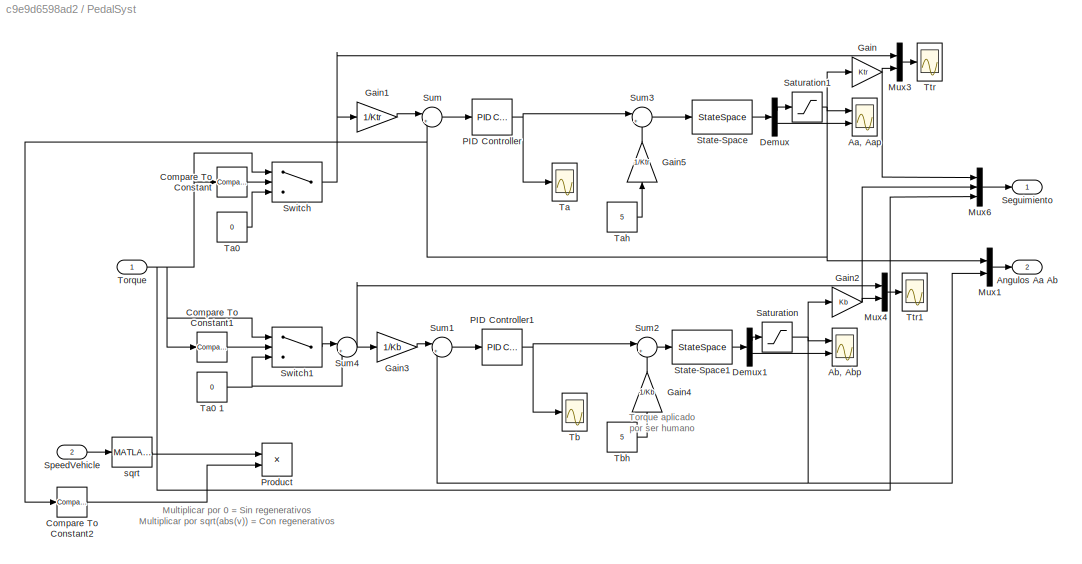
BLOCK [SubSystem] PedalSyst
  Ports = [2, 2]
  RequestExecContextInheritance = off
BLOCK [Scope] PedalSyst/Aa, Aap
  Floating = off
  NumInputPorts = 2
  Ports = [2]
  ScopeSpecificationString = Simulink.scopes.TimeScopeBlockCfg('CurrentConfiguration', extmgr.ConfigurationSet(extmgr.Configuration('Core','General UI',true,'DisplayFullSourceName',true),extmgr.Configuration('Core','Source UI',true),extmgr.Configuration('Sources','WiredSimulink',true,'DataLoggingVariableName','ScopeData1'),extmgr.Configuration('Visuals','Time Domain',true,'SerializedDisplays',{struct('MinYLimReal','-6.25','Ma...<+1993ch>
BLOCK [Scope] PedalSyst/Ab, Abp
  Floating = off
  NumInputPorts = 2
  Ports = [2]
  ScopeSpecificationString = Simulink.scopes.TimeScopeBlockCfg('CurrentConfiguration', extmgr.ConfigurationSet(extmgr.Configuration('Core','General UI',true,'DisplayFullSourceName',true),extmgr.Configuration('Core','Source UI',true),extmgr.Configuration('Sources','WiredSimulink',true,'DataLoggingVariableName','ScopeData2'),extmgr.Configuration('Visuals','Time Domain',true,'SerializedDisplays',{struct('MinYLimReal','-9.60414',...<+1997ch>
BLOCK [Outport] PedalSyst/Angulos Aa Ab
  IconDisplay = Port number
  Port = 2
BLOCK [Reference] PedalSyst/Compare To Constant  REF=simulink/Logic and Bit
Operations/Compare
To Constant
  Ports = [1, 1]
  SourceBlock = simulink/Logic and Bit\nOperations/Compare\nTo Constant
  SourceProductBaseCode = SL
  SourceProductName = Simulink
  SourceType = Compare To Constant
BLOCK [Reference] PedalSyst/Compare To Constant1  REF=simulink/Logic and Bit
Operations/Compare
To Constant
  Ports = [1, 1]
  SourceBlock = simulink/Logic and Bit\nOperations/Compare\nTo Constant
  SourceProductBaseCode = SL
  SourceProductName = Simulink
  SourceType = Compare To Constant
BLOCK [Reference] PedalSyst/Compare To Constant2  REF=simulink/Logic and Bit
Operations/Compare
To Constant
  Ports = [1, 1]
  SourceBlock = simulink/Logic and Bit\nOperations/Compare\nTo Constant
  SourceProductBaseCode = SL
  SourceProductName = Simulink
  SourceType = Compare To Constant
BLOCK [Demux] PedalSyst/Demux
  DisplayOption = bar
  Outputs = 2
  Ports = [1, 2]
BLOCK [Demux] PedalSyst/Demux1
  DisplayOption = bar
  Outputs = 2
  Ports = [1, 2]
BLOCK [Gain] PedalSyst/Gain
  Gain = Ktr
  OutDataTypeStr = Inherit: Inherit via internal rule
  ParamDataTypeStr = Inherit: Inherit via internal rule
  SaturateOnIntegerOverflow = off
BLOCK [Gain] PedalSyst/Gain1
  Gain = 1/Ktr
  OutDataTypeStr = Inherit: Inherit via internal rule
  ParamDataTypeStr = Inherit: Inherit via internal rule
  SaturateOnIntegerOverflow = off
BLOCK [Gain] PedalSyst/Gain2
  Gain = Kb
  OutDataTypeStr = Inherit: Inherit via internal rule
  ParamDataTypeStr = Inherit: Inherit via internal rule
  SaturateOnIntegerOverflow = off
BLOCK [Gain] PedalSyst/Gain3
  Gain = 1/Kb
  OutDataTypeStr = Inherit: Inherit via internal rule
  ParamDataTypeStr = Inherit: Inherit via internal rule
  SaturateOnIntegerOverflow = off
BLOCK [Gain] PedalSyst/Gain4
  Gain = 1/Kb
  OutDataTypeStr = Inherit: Inherit via internal rule
  ParamDataTypeStr = Inherit: Inherit via internal rule
  SaturateOnIntegerOverflow = off
BLOCK [Gain] PedalSyst/Gain5
  Gain = 1/Ktr
  OutDataTypeStr = Inherit: Inherit via internal rule
  ParamDataTypeStr = Inherit: Inherit via internal rule
  SaturateOnIntegerOverflow = off
BLOCK [Mux] PedalSyst/Mux1
  DisplayOption = bar
  Inputs = 2
  Ports = [2, 1]
BLOCK [Mux] PedalSyst/Mux3
  DisplayOption = bar
  Inputs = 2
  Ports = [2, 1]
BLOCK [Mux] PedalSyst/Mux4
  DisplayOption = bar
  Inputs = 2
  Ports = [2, 1]
BLOCK [Mux] PedalSyst/Mux6
  DisplayOption = bar
  Inputs = 3
  Ports = [3, 1]
BLOCK [Reference] PedalSyst/PID Controller  REF=simulink/Continuous/PID Controller
  Ports = [1, 1]
  SourceBlock = simulink/Continuous/PID Controller
  SourceProductBaseCode = SL
  SourceProductName = Simulink
  SourceType = PID 1dof
BLOCK [Reference] PedalSyst/PID Controller1  REF=simulink/Continuous/PID Controller
  Ports = [1, 1]
  SourceBlock = simulink/Continuous/PID Controller
  SourceProductBaseCode = SL
  SourceProductName = Simulink
  SourceType = PID 1dof
BLOCK [Product] PedalSyst/Product
  InputSameDT = off
  OutDataTypeStr = Inherit: Inherit via internal rule
  Ports = [2, 1]
  RndMeth = Floor
  SaturateOnIntegerOverflow = off
BLOCK [Saturate] PedalSyst/Saturation
  InputPortMap = u0
  LowerLimit = -50
  Ports = [1, 1]
  UpperLimit = 0
BLOCK [Saturate] PedalSyst/Saturation1
  InputPortMap = u0
  LowerLimit = 0
  Ports = [1, 1]
  UpperLimit = 50
BLOCK [Outport] PedalSyst/Seguimiento
  IconDisplay = Port number
BLOCK [Inport] PedalSyst/SpeedVehicle
  IconDisplay = Port number
  Port = 2
BLOCK [StateSpace] PedalSyst/State-Space
  A = [0 1; -Kre_a/Ja 0]
  B = [0; 1/Ja]
  C = [1 0; 0 1]
  D = [0; 0]
  InitialCondition = [0 0]
  Ports = [1, 1]
BLOCK [StateSpace] PedalSyst/State-Space1
  A = [0 1; -Kre_b/Jb 0]
  B = [0; 1/Jb]
  C = [1 0; 0 1]
  D = [0; 0]
  InitialCondition = [0 0]
  Ports = [1, 1]
BLOCK [Sum] PedalSyst/Sum
  IconShape = round
  InputSameDT = off
  Inputs = |+-
  OutDataTypeStr = Inherit: Inherit via internal rule
  Ports = [2, 1]
  SaturateOnIntegerOverflow = off
BLOCK [Sum] PedalSyst/Sum1
  IconShape = round
  InputSameDT = off
  Inputs = |+-
  OutDataTypeStr = Inherit: Inherit via internal rule
  Ports = [2, 1]
  SaturateOnIntegerOverflow = off
BLOCK [Sum] PedalSyst/Sum2
  IconShape = round
  InputSameDT = off
  Inputs = |++
  OutDataTypeStr = Inherit: Inherit via internal rule
  Ports = [2, 1]
  SaturateOnIntegerOverflow = off
BLOCK [Sum] PedalSyst/Sum3
  IconShape = round
  InputSameDT = off
  Inputs = |++
  OutDataTypeStr = Inherit: Inherit via internal rule
  Ports = [2, 1]
  SaturateOnIntegerOverflow = off
BLOCK [Sum] PedalSyst/Sum4
  IconShape = round
  InputSameDT = off
  Inputs = |++
  OutDataTypeStr = Inherit: Inherit via internal rule
  Ports = [2, 1]
  SaturateOnIntegerOverflow = off
BLOCK [Switch] PedalSyst/Switch
  Criteria = u2 > Threshold
  InputSameDT = off
  SaturateOnIntegerOverflow = off
BLOCK [Switch] PedalSyst/Switch1
  Criteria = u2 > Threshold
  InputSameDT = off
  SaturateOnIntegerOverflow = off
BLOCK [Scope] PedalSyst/Ta
  Floating = off
  NumInputPorts = 1
  Ports = [1]
  ScopeSpecificationString = Simulink.scopes.TimeScopeBlockCfg('CurrentConfiguration', extmgr.ConfigurationSet(extmgr.Configuration('Core','General UI',true),extmgr.Configuration('Core','Source UI',true),extmgr.Configuration('Sources','WiredSimulink',true,'DataLoggingVariableName','ScopeData3'),extmgr.Configuration('Visuals','Time Domain',true,'SerializedDisplays',{struct('MinYLimReal','-6.4492','MaxYLimReal','9.19664','YLabe...<+1398ch>
BLOCK [Constant] PedalSyst/Ta0 
  Value = 0
BLOCK [Constant] PedalSyst/Ta0 1
  Value = 0
BLOCK [Constant] PedalSyst/Tah
  Value = 5
BLOCK [Scope] PedalSyst/Tb
  Floating = off
  NumInputPorts = 1
  Ports = [1]
  ScopeSpecificationString = Simulink.scopes.TimeScopeBlockCfg('CurrentConfiguration', extmgr.ConfigurationSet(extmgr.Configuration('Core','General UI',true),extmgr.Configuration('Core','Source UI',true),extmgr.Configuration('Sources','WiredSimulink',true,'DataLoggingVariableName','ScopeData4'),extmgr.Configuration('Visuals','Time Domain',true,'SerializedDisplays',{struct('MinYLimReal','-9.63602','MaxYLimReal','7.60603','YLab...<+1401ch>
BLOCK [Constant] PedalSyst/Tbh 
  Value = 5
BLOCK [Inport] PedalSyst/Torque
  IconDisplay = Port number
BLOCK [Scope] PedalSyst/Ttr
  Floating = off
  NumInputPorts = 1
  Ports = [1]
  ScopeSpecificationString = Simulink.scopes.TimeScopeBlockCfg('CurrentConfiguration', extmgr.ConfigurationSet(extmgr.Configuration('Core','General UI',true),extmgr.Configuration('Core','Source UI',true),extmgr.Configuration('Sources','WiredSimulink',true,'DataLoggingVariableName','ScopeData5'),extmgr.Configuration('Visuals','Time Domain',true,'SerializedDisplays',{struct('MinYLimReal','-28.23196','MaxYLimReal','254.08764','Y...<+1409ch>
BLOCK [Scope] PedalSyst/Ttr1
  Floating = off
  NumInputPorts = 1
  Ports = [1]
  ScopeSpecificationString = Simulink.scopes.TimeScopeBlockCfg('CurrentConfiguration', extmgr.ConfigurationSet(extmgr.Configuration('Core','General UI',true),extmgr.Configuration('Core','Source UI',true),extmgr.Configuration('Sources','WiredSimulink',true,'DataLoggingVariableName','ScopeData6'),extmgr.Configuration('Visuals','Time Domain',true,'SerializedDisplays',{struct('MinYLimReal','-94.39316','MaxYLimReal','10.48813','YL...<+1404ch>
BLOCK [MATLABFcn] PedalSyst/sqrt
  MATLABFcn = sqrt(140*abs(u))
  Ports = [1, 1]
BLOCK [Constant] Q
  Value = [0 1 0]
BLOCK [Saturate] Saturation
  InputPortMap = u0
  LowerLimit = -220
  Ports = [1, 1]
  UpperLimit = 220
BLOCK [Scope] Scope
  Floating = off
  NumInputPorts = 4
  Ports = [4]
  ScopeSpecificationString = Simulink.scopes.TimeScopeBlockCfg('CurrentConfiguration', extmgr.ConfigurationSet(extmgr.Configuration('Core','General UI',true),extmgr.Configuration('Core','Source UI',true),extmgr.Configuration('Sources','WiredSimulink',true),extmgr.Configuration('Visuals','Time Domain',true,'SerializedDisplays',{struct('MinYLimReal','-3114.08837','MaxYLimReal','28026.79529','YLabelReal','','MinYLimMag','  0.000...<+3472ch>
BLOCK [SubSystem] SpeedReference 
  Ports = [0, 1]
  RequestExecContextInheritance = off
BLOCK [FromWorkspace] SpeedReference /From Workspace
  SampleTime = 0
  VariableName = SpeedRef
  ZeroCross = on
BLOCK [MultiPortSwitch] SpeedReference /Multiport Switch
  InputSameDT = off
  Inputs = 4
  Ports = [5, 1]
  SaturateOnIntegerOverflow = off
BLOCK [Reference] SpeedReference /Ramp  REF=simulink/Sources/Ramp
  Ports = [0, 1]
  SourceBlock = simulink/Sources/Ramp
  SourceProductBaseCode = SL
  SourceProductName = Simulink
  SourceType = Ramp
BLOCK [SignalGenerator] SpeedReference /Signal Generator
  Ports = [0, 1]
  Units = rad/sec
BLOCK [Scope] SpeedReference /Speed 
  Floating = off
  NumInputPorts = 1
  Ports = [1]
  ScopeSpecificationString = Simulink.scopes.TimeScopeBlockCfg('CurrentConfiguration', extmgr.ConfigurationSet(extmgr.Configuration('Core','General UI',true),extmgr.Configuration('Core','Source UI',true),extmgr.Configuration('Sources','WiredSimulink',true,'DataLoggingVariableName','ScopeData7'),extmgr.Configuration('Visuals','Time Domain',true,'SerializedDisplays',{struct('MinYLimReal','-8.05','MaxYLimReal','72.45','YLabelRea...<+1388ch>
BLOCK [Sum] SpeedReference /Sum
  IconShape = round
  InputSameDT = off
  Inputs = |++
  OutDataTypeStr = Inherit: Inherit via internal rule
  Ports = [2, 1]
  SaturateOnIntegerOverflow = off
BLOCK [Outport] SpeedReference /Vref
  IconDisplay = Port number
BLOCK [Constant] SpeedReference /Xf2
  Value = 45
BLOCK [Constant] SpeedReference /Xf3
  Value = 30
BLOCK [Constant] SpeedReference /Xf6
BLOCK [Constant] TVP
  Value = zeros(10,1)
BLOCK [ToWorkspace] To Workspace
  FixptAsFi = on
  MaxDataPoints = inf
  Ports = [1]
  SampleTime = -1
  Save2DSignal = 3-D array (concatenate along third dimension)
  SaveFormat = Timeseries
  VariableName = States
BLOCK [Scope] Ttr 
  Floating = off
  NumInputPorts = 1
  Ports = [1]
  ScopeSpecificationString = Simulink.scopes.TimeScopeBlockCfg('CurrentConfiguration', extmgr.ConfigurationSet(extmgr.Configuration('Core','General UI',true),extmgr.Configuration('Core','Source UI',true),extmgr.Configuration('Sources','WiredSimulink',true,'DataLoggingVariableName','ScopeData8'),extmgr.Configuration('Visuals','Time Domain',true,'SerializedDisplays',{struct('MinYLimReal','-122.62512','MaxYLimReal','264.57577','...<+1445ch>
BLOCK [Constant] W
  Value = 0
BLOCK [Constant] W1
  Value = 0.2
BLOCK [Constant] Xf1
  Value = 300
BLOCK [Constant] Xf4
  Value = 0
BLOCK [Constant] dt
ANNOTATION (root): OJO: NREL requires 1.6/3.6 because it comes in miles
ANNOTATION Longitudinal Dynamic1/Subsystem: UP : NO RBS DOWN: RBS
ANNOTATION Longitudinal Dynamic1/Subsystem/Subsystem: RPM
ANNOTATION PedalSyst: Multiplicar por 0 = Sin regenerativos Multiplicar por sqrt(abs(v)) = Con regenerativos
ANNOTATION PedalSyst: Torque aplicado por ser humano
NET Gain:1 -> Mux2:2, Mux5:2
LINE Longitudinal Dynamic1/Add:1 -> Longitudinal Dynamic1/Gain1:1
LINE Longitudinal Dynamic1/Constant10:1 -> Longitudinal Dynamic1/Product2:4
LINE Longitudinal Dynamic1/Constant11:1 -> Longitudinal Dynamic1/Product4:2
LINE Longitudinal Dynamic1/Constant12:1 -> Longitudinal Dynamic1/Product4:3
LINE Longitudinal Dynamic1/Constant4:1 -> Longitudinal Dynamic1/Product:2
LINE Longitudinal Dynamic1/Constant5:1 -> Longitudinal Dynamic1/Product:3
LINE Longitudinal Dynamic1/Constant6:1 -> Longitudinal Dynamic1/Product:4
LINE Longitudinal Dynamic1/Constant8:1 -> Longitudinal Dynamic1/Product2:2
LINE Longitudinal Dynamic1/Constant9:1 -> Longitudinal Dynamic1/Product2:3
LINE Longitudinal Dynamic1/Constant:1 -> Longitudinal Dynamic1/Product2:1
LINE Longitudinal Dynamic1/Gain1:1 -> Longitudinal Dynamic1/Integrator1:1
NET Longitudinal Dynamic1/Gain:1 -> Longitudinal Dynamic1/Add:1, Longitudinal Dynamic1/Product1:1
NET Longitudinal Dynamic1/Integrator1:1 -> Longitudinal Dynamic1/Display2:1, Longitudinal Dynamic1/Integrator:1, Longitudinal Dynamic1/Product1:2, Longitudinal Dynamic1/Product5:1, Longitudinal Dynamic1/Product5:2, Longitudinal Dynamic1/Subsystem:2, Longitudinal Dynamic1/V:1
LINE Longitudinal Dynamic1/Integrator3:1 -> Longitudinal Dynamic1/Display5:1
NET Longitudinal Dynamic1/Integrator:1 -> Longitudinal Dynamic1/Display1:1, Longitudinal Dynamic1/X:1
LINE Longitudinal Dynamic1/Losses Battery + Thermal/%R0 %Fcc :1 -> Longitudinal Dynamic1/Losses Battery + Thermal/Demux1:1
LINE Longitudinal Dynamic1/Losses Battery + Thermal/Constant:1 -> Longitudinal Dynamic1/Losses Battery + Thermal/Divide8:1
LINE Longitudinal Dynamic1/Losses Battery + Thermal/Demux1:1 -> Longitudinal Dynamic1/Losses Battery + Thermal/Goto4:1
LINE Longitudinal Dynamic1/Losses Battery + Thermal/Demux1:2 -> Longitudinal Dynamic1/Losses Battery + Thermal/Goto3:1
LINE Longitudinal Dynamic1/Losses Battery + Thermal/Demux:1 -> Longitudinal Dynamic1/Losses Battery + Thermal/Gain1:1
LINE Longitudinal Dynamic1/Losses Battery + Thermal/Demux:2 -> Longitudinal Dynamic1/Losses Battery + Thermal/Gain2:1
LINE Longitudinal Dynamic1/Losses Battery + Thermal/Demux:3 -> Longitudinal Dynamic1/Losses Battery + Thermal/Gain3:1
LINE Longitudinal Dynamic1/Losses Battery + Thermal/Divide1:1 -> Longitudinal Dynamic1/Losses Battery + Thermal/Subtract:2
LINE Longitudinal Dynamic1/Losses Battery + Thermal/Divide2:1 -> Longitudinal Dynamic1/Losses Battery + Thermal/add :1
LINE Longitudinal Dynamic1/Losses Battery + Thermal/Divide3:1 -> Longitudinal Dynamic1/Losses Battery + Thermal/Integrator1:1
LINE Longitudinal Dynamic1/Losses Battery + Thermal/Divide7:1 -> Longitudinal Dynamic1/Losses Battery + Thermal/Product3:2
LINE Longitudinal Dynamic1/Losses Battery + Thermal/Divide8:1 -> Longitudinal Dynamic1/Losses Battery + Thermal/Divide3:1
LINE Longitudinal Dynamic1/Losses Battery + Thermal/Divide:1 -> Longitudinal Dynamic1/Losses Battery + Thermal/Subtract:1
LINE Longitudinal Dynamic1/Losses Battery + Thermal/From1:1 -> Longitudinal Dynamic1/Losses Battery + Thermal/Divide7:2
LINE Longitudinal Dynamic1/Losses Battery + Thermal/From2:1 -> Longitudinal Dynamic1/Losses Battery + Thermal/Product2:1
NET Longitudinal Dynamic1/Losses Battery + Thermal/From3:1 -> Longitudinal Dynamic1/Losses Battery + Thermal/Divide2:1, Longitudinal Dynamic1/Losses Battery + Thermal/Product2:2
LINE Longitudinal Dynamic1/Losses Battery + Thermal/From4:1 -> Longitudinal Dynamic1/Losses Battery + Thermal/Divide7:1
LINE Longitudinal Dynamic1/Losses Battery + Thermal/From5:1 -> Longitudinal Dynamic1/Losses Battery + Thermal/Divide8:2
LINE Longitudinal Dynamic1/Losses Battery + Thermal/From:1 -> Longitudinal Dynamic1/Losses Battery + Thermal/Divide:1
LINE Longitudinal Dynamic1/Losses Battery + Thermal/Gain1:1 -> Longitudinal Dynamic1/Losses Battery + Thermal/Goto:1
LINE Longitudinal Dynamic1/Losses Battery + Thermal/Gain2:1 -> Longitudinal Dynamic1/Losses Battery + Thermal/Goto1:1
LINE Longitudinal Dynamic1/Losses Battery + Thermal/Gain3:1 -> Longitudinal Dynamic1/Losses Battery + Thermal/Goto2:1
LINE Longitudinal Dynamic1/Losses Battery + Thermal/Gain4:1 -> Longitudinal Dynamic1/Losses Battery + Thermal/Divide3:2
NET Longitudinal Dynamic1/Losses Battery + Thermal/Gain6:1 -> Longitudinal Dynamic1/Losses Battery + Thermal/Index Search:1, Longitudinal Dynamic1/Losses Battery + Thermal/Scope:1
NET Longitudinal Dynamic1/Losses Battery + Thermal/Gain:1 -> Longitudinal Dynamic1/Losses Battery + Thermal/Divide:2, Longitudinal Dynamic1/Losses Battery + Thermal/Gain4:1, Longitudinal Dynamic1/Losses Battery + Thermal/Product:1, Longitudinal Dynamic1/Losses Battery + Thermal/Product:2
LINE Longitudinal Dynamic1/Losses Battery + Thermal/Index Search1:1 -> Longitudinal Dynamic1/Losses Battery + Thermal/%R0 %Fcc :1
NET Longitudinal Dynamic1/Losses Battery + Thermal/Index Search:1 -> Longitudinal Dynamic1/Losses Battery + Thermal/R1 C1 R0 :1, Longitudinal Dynamic1/Losses Battery + Thermal/Scope1:1
LINE Longitudinal Dynamic1/Losses Battery + Thermal/Integrator1:1 -> Longitudinal Dynamic1/Losses Battery + Thermal/Gain6:1
NET Longitudinal Dynamic1/Losses Battery + Thermal/Integrator:1 -> Longitudinal Dynamic1/Losses Battery + Thermal/Divide1:1, Longitudinal Dynamic1/Losses Battery + Thermal/Product1:1, Longitudinal Dynamic1/Losses Battery + Thermal/Product1:2
NET Longitudinal Dynamic1/Losses Battery + Thermal/P out [A]:1 -> Longitudinal Dynamic1/Losses Battery + Thermal/Gain:1, Longitudinal Dynamic1/Losses Battery + Thermal/Termic Battery :2, Longitudinal Dynamic1/Losses Battery + Thermal/add 1:2
LINE Longitudinal Dynamic1/Losses Battery + Thermal/Product1:1 -> Longitudinal Dynamic1/Losses Battery + Thermal/Divide2:2
LINE Longitudinal Dynamic1/Losses Battery + Thermal/Product2:1 -> Longitudinal Dynamic1/Losses Battery + Thermal/Divide1:2
LINE Longitudinal Dynamic1/Losses Battery + Thermal/Product3:1 -> Longitudinal Dynamic1/Losses Battery + Thermal/add :2
LINE Longitudinal Dynamic1/Losses Battery + Thermal/Product:1 -> Longitudinal Dynamic1/Losses Battery + Thermal/Product3:1
LINE Longitudinal Dynamic1/Losses Battery + Thermal/R1 C1 R0 :1 -> Longitudinal Dynamic1/Losses Battery + Thermal/Demux:1
LINE Longitudinal Dynamic1/Losses Battery + Thermal/Subtract:1 -> Longitudinal Dynamic1/Losses Battery + Thermal/Integrator:1
LINE Longitudinal Dynamic1/Losses Battery + Thermal/Ta:1 -> Longitudinal Dynamic1/Losses Battery + Thermal/Termic Battery :1
LINE Longitudinal Dynamic1/Losses Battery + Thermal/Termic Battery /Add10:1 -> Longitudinal Dynamic1/Losses Battery + Thermal/Termic Battery /Gain11:1
LINE Longitudinal Dynamic1/Losses Battery + Thermal/Termic Battery /Add1:1 -> Longitudinal Dynamic1/Losses Battery + Thermal/Termic Battery /Gain1:1
LINE Longitudinal Dynamic1/Losses Battery + Thermal/Termic Battery /Add2:1 -> Longitudinal Dynamic1/Losses Battery + Thermal/Termic Battery /Gain2:1
LINE Longitudinal Dynamic1/Losses Battery + Thermal/Termic Battery /Add3:1 -> Longitudinal Dynamic1/Losses Battery + Thermal/Termic Battery /Gain5:1
LINE Longitudinal Dynamic1/Losses Battery + Thermal/Termic Battery /Add4:1 -> Longitudinal Dynamic1/Losses Battery + Thermal/Termic Battery /Gain4:1
LINE Longitudinal Dynamic1/Losses Battery + Thermal/Termic Battery /Add5:1 -> Longitudinal Dynamic1/Losses Battery + Thermal/Termic Battery /Gain6:1
LINE Longitudinal Dynamic1/Losses Battery + Thermal/Termic Battery /Add6:1 -> Longitudinal Dynamic1/Losses Battery + Thermal/Termic Battery /Gain7:1
LINE Longitudinal Dynamic1/Losses Battery + Thermal/Termic Battery /Add7:1 -> Longitudinal Dynamic1/Losses Battery + Thermal/Termic Battery /Gain8:1
LINE Longitudinal Dynamic1/Losses Battery + Thermal/Termic Battery /Add8:1 -> Longitudinal Dynamic1/Losses Battery + Thermal/Termic Battery /Gain13:1
LINE Longitudinal Dynamic1/Losses Battery + Thermal/Termic Battery /Add9:1 -> Longitudinal Dynamic1/Losses Battery + Thermal/Termic Battery /Gain14:1
LINE Longitudinal Dynamic1/Losses Battery + Thermal/Termic Battery /Add:1 -> Longitudinal Dynamic1/Losses Battery + Thermal/Termic Battery /Gain:1
LINE Longitudinal Dynamic1/Losses Battery + Thermal/Termic Battery /Constant:1 -> Longitudinal Dynamic1/Losses Battery + Thermal/Termic Battery /Add2:1
LINE Longitudinal Dynamic1/Losses Battery + Thermal/Termic Battery /Gain11:1 -> Longitudinal Dynamic1/Losses Battery + Thermal/Termic Battery /Add2:4
LINE Longitudinal Dynamic1/Losses Battery + Thermal/Termic Battery /Gain13:1 -> Longitudinal Dynamic1/Losses Battery + Thermal/Termic Battery /Add2:2
LINE Longitudinal Dynamic1/Losses Battery + Thermal/Termic Battery /Gain14:1 -> Longitudinal Dynamic1/Losses Battery + Thermal/Termic Battery /Add2:3
LINE Longitudinal Dynamic1/Losses Battery + Thermal/Termic Battery /Gain1:1 -> Longitudinal Dynamic1/Losses Battery + Thermal/Termic Battery /Integrator1:1
LINE Longitudinal Dynamic1/Losses Battery + Thermal/Termic Battery /Gain2:1 -> Longitudinal Dynamic1/Losses Battery + Thermal/Termic Battery /Integrator2:1
LINE Longitudinal Dynamic1/Losses Battery + Thermal/Termic Battery /Gain4:1 -> Longitudinal Dynamic1/Losses Battery + Thermal/Termic Battery /Add:2
LINE Longitudinal Dynamic1/Losses Battery + Thermal/Termic Battery /Gain5:1 -> Longitudinal Dynamic1/Losses Battery + Thermal/Termic Battery /Add:3
LINE Longitudinal Dynamic1/Losses Battery + Thermal/Termic Battery /Gain6:1 -> Longitudinal Dynamic1/Losses Battery + Thermal/Termic Battery /Add:4
LINE Longitudinal Dynamic1/Losses Battery + Thermal/Termic Battery /Gain7:1 -> Longitudinal Dynamic1/Losses Battery + Thermal/Termic Battery /Add1:1
LINE Longitudinal Dynamic1/Losses Battery + Thermal/Termic Battery /Gain8:1 -> Longitudinal Dynamic1/Losses Battery + Thermal/Termic Battery /Add1:2
LINE Longitudinal Dynamic1/Losses Battery + Thermal/Termic Battery /Gain:1 -> Longitudinal Dynamic1/Losses Battery + Thermal/Termic Battery /Integrator3:1
NET Longitudinal Dynamic1/Losses Battery + Thermal/Termic Battery /Integrator1:1 -> Longitudinal Dynamic1/Losses Battery + Thermal/Termic Battery /Add4:2, Longitudinal Dynamic1/Losses Battery + Thermal/Termic Battery /Add6:1, Longitudinal Dynamic1/Losses Battery + Thermal/Termic Battery /Add7:1, Longitudinal Dynamic1/Losses Battery + Thermal/Termic Battery /Add8:2, Longitudinal Dynamic1/Losses Battery + Thermal/Termic Battery /Ti:1
NET Longitudinal Dynamic1/Losses Battery + Thermal/Termic Battery /Integrator2:1 -> Longitudinal Dynamic1/Losses Battery + Thermal/Termic Battery /Add10:1, Longitudinal Dynamic1/Losses Battery + Thermal/Termic Battery /Add5:2, Longitudinal Dynamic1/Losses Battery + Thermal/Termic Battery /Add7:2, Longitudinal Dynamic1/Losses Battery + Thermal/Termic Battery /Add8:1, Longitudinal Dynamic1/Losses Battery + Thermal/Termic Battery /Add9:1, Longitudinal Dynamic1/Losses Battery + Thermal/Termic Battery /To:1
NET Longitudinal Dynamic1/Losses Battery + Thermal/Termic Battery /Integrator3:1 -> Longitudinal Dynamic1/Losses Battery + Thermal/Termic Battery /Add10:2, Longitudinal Dynamic1/Losses Battery + Thermal/Termic Battery /Add3:1, Longitudinal Dynamic1/Losses Battery + Thermal/Termic Battery /Add4:1, Longitudinal Dynamic1/Losses Battery + Thermal/Termic Battery /Add5:1, Longitudinal Dynamic1/Losses Battery + Thermal/Termic Battery /Add6:2, Longitudinal Dynamic1/Losses Battery + Thermal/Termic Battery /Tb:1
LINE Longitudinal Dynamic1/Losses Battery + Thermal/Termic Battery /Pw_Bat:1 -> Longitudinal Dynamic1/Losses Battery + Thermal/Termic Battery /Add:1
LINE Longitudinal Dynamic1/Losses Battery + Thermal/Termic Battery /Ta1:1 -> Longitudinal Dynamic1/Losses Battery + Thermal/Termic Battery /Add9:2
LINE Longitudinal Dynamic1/Losses Battery + Thermal/Termic Battery /Ta:1 -> Longitudinal Dynamic1/Losses Battery + Thermal/Termic Battery /Add3:2
NET Longitudinal Dynamic1/Losses Battery + Thermal/Termic Battery :1 -> Longitudinal Dynamic1/Losses Battery + Thermal/Index Search1:1, Longitudinal Dynamic1/Losses Battery + Thermal/Scope4:1
LINE Longitudinal Dynamic1/Losses Battery + Thermal/Termic Battery :2 -> Longitudinal Dynamic1/Losses Battery + Thermal/Scope2:1
LINE Longitudinal Dynamic1/Losses Battery + Thermal/Termic Battery :3 -> Longitudinal Dynamic1/Losses Battery + Thermal/Scope5:1
NET Longitudinal Dynamic1/Losses Battery + Thermal/add 1:1 -> Longitudinal Dynamic1/Losses Battery + Thermal/Pbat_ in:1, Longitudinal Dynamic1/Losses Battery + Thermal/Scope3:1
NET Longitudinal Dynamic1/Losses Battery + Thermal/add :1 -> Longitudinal Dynamic1/Losses Battery + Thermal/To Workspace2:1, Longitudinal Dynamic1/Losses Battery + Thermal/add 1:1
NET Longitudinal Dynamic1/Losses Battery + Thermal:1 -> Longitudinal Dynamic1/States Battery + Thermal:1, Longitudinal Dynamic1/To Workspace3:1
LINE Longitudinal Dynamic1/Losses Driver + Thermal/%Vgs %Rdon :1 -> Longitudinal Dynamic1/Losses Driver + Thermal/Demux1:1
LINE Longitudinal Dynamic1/Losses Driver + Thermal/Add:1 -> Longitudinal Dynamic1/Losses Driver + Thermal/Saturation:1
NET Longitudinal Dynamic1/Losses Driver + Thermal/Demux1:1 -> Longitudinal Dynamic1/Losses Driver + Thermal/Mux:1, Longitudinal Dynamic1/Losses Driver + Thermal/Scope9:1
NET Longitudinal Dynamic1/Losses Driver + Thermal/Demux1:2 -> Longitudinal Dynamic1/Losses Driver + Thermal/Mux:2, Longitudinal Dynamic1/Losses Driver + Thermal/Scope10:1
NET Longitudinal Dynamic1/Losses Driver + Thermal/Gain:1 -> Longitudinal Dynamic1/Losses Driver + Thermal/Add:2, Longitudinal Dynamic1/Losses Driver + Thermal/Scope5:1, Longitudinal Dynamic1/Losses Driver + Thermal/Termic Battery :2
NET Longitudinal Dynamic1/Losses Driver + Thermal/I out [A]:1 -> Longitudinal Dynamic1/Losses Driver + Thermal/Gain:1, Longitudinal Dynamic1/Losses Driver + Thermal/Mux:3, Longitudinal Dynamic1/Losses Driver + Thermal/Scope2:1
LINE Longitudinal Dynamic1/Losses Driver + Thermal/Index Search1:1 -> Longitudinal Dynamic1/Losses Driver + Thermal/%Vgs %Rdon :1
NET Longitudinal Dynamic1/Losses Driver + Thermal/MATLAB Function:1 -> Longitudinal Dynamic1/Losses Driver + Thermal/Add:1, Longitudinal Dynamic1/Losses Driver + Thermal/Scope3:1, Longitudinal Dynamic1/Losses Driver + Thermal/To Workspace1:1
LINE Longitudinal Dynamic1/Losses Driver + Thermal/Mux:1 -> Longitudinal Dynamic1/Losses Driver + Thermal/MATLAB Function:1
NET Longitudinal Dynamic1/Losses Driver + Thermal/Saturation:1 -> Longitudinal Dynamic1/Losses Driver + Thermal/Pdr_ in:1, Longitudinal Dynamic1/Losses Driver + Thermal/Scope1:1
LINE Longitudinal Dynamic1/Losses Driver + Thermal/Ta:1 -> Longitudinal Dynamic1/Losses Driver + Thermal/Termic Battery :1
LINE Longitudinal Dynamic1/Losses Driver + Thermal/Termic Battery /Add10:1 -> Longitudinal Dynamic1/Losses Driver + Thermal/Termic Battery /Gain10:1
LINE Longitudinal Dynamic1/Losses Driver + Thermal/Termic Battery /Add11:1 -> Longitudinal Dynamic1/Losses Driver + Thermal/Termic Battery /Gain11:1
LINE Longitudinal Dynamic1/Losses Driver + Thermal/Termic Battery /Add12:1 -> Longitudinal Dynamic1/Losses Driver + Thermal/Termic Battery /Gain12:1
LINE Longitudinal Dynamic1/Losses Driver + Thermal/Termic Battery /Add1:1 -> Longitudinal Dynamic1/Losses Driver + Thermal/Termic Battery /Gain1:1
LINE Longitudinal Dynamic1/Losses Driver + Thermal/Termic Battery /Add2:1 -> Longitudinal Dynamic1/Losses Driver + Thermal/Termic Battery /Gain2:1
LINE Longitudinal Dynamic1/Losses Driver + Thermal/Termic Battery /Add3:1 -> Longitudinal Dynamic1/Losses Driver + Thermal/Termic Battery /Gain3:1
LINE Longitudinal Dynamic1/Losses Driver + Thermal/Termic Battery /Add4:1 -> Longitudinal Dynamic1/Losses Driver + Thermal/Termic Battery /Gain4:1
LINE Longitudinal Dynamic1/Losses Driver + Thermal/Termic Battery /Add5:1 -> Longitudinal Dynamic1/Losses Driver + Thermal/Termic Battery /Gain5:1
LINE Longitudinal Dynamic1/Losses Driver + Thermal/Termic Battery /Add6:1 -> Longitudinal Dynamic1/Losses Driver + Thermal/Termic Battery /Gain7:1
LINE Longitudinal Dynamic1/Losses Driver + Thermal/Termic Battery /Add7:1 -> Longitudinal Dynamic1/Losses Driver + Thermal/Termic Battery /Gain8:1
LINE Longitudinal Dynamic1/Losses Driver + Thermal/Termic Battery /Add8:1 -> Longitudinal Dynamic1/Losses Driver + Thermal/Termic Battery /Gain6:1
LINE Longitudinal Dynamic1/Losses Driver + Thermal/Termic Battery /Add9:1 -> Longitudinal Dynamic1/Losses Driver + Thermal/Termic Battery /Gain9:1
LINE Longitudinal Dynamic1/Losses Driver + Thermal/Termic Battery /Add:1 -> Longitudinal Dynamic1/Losses Driver + Thermal/Termic Battery /Gain:1
LINE Longitudinal Dynamic1/Losses Driver + Thermal/Termic Battery /Gain10:1 -> Longitudinal Dynamic1/Losses Driver + Thermal/Termic Battery /Add5:3
LINE Longitudinal Dynamic1/Losses Driver + Thermal/Termic Battery /Gain11:1 -> Longitudinal Dynamic1/Losses Driver + Thermal/Termic Battery /Add5:1
LINE Longitudinal Dynamic1/Losses Driver + Thermal/Termic Battery /Gain12:1 -> Longitudinal Dynamic1/Losses Driver + Thermal/Termic Battery /Add5:2
LINE Longitudinal Dynamic1/Losses Driver + Thermal/Termic Battery /Gain1:1 -> Longitudinal Dynamic1/Losses Driver + Thermal/Termic Battery /Integrator1:1
LINE Longitudinal Dynamic1/Losses Driver + Thermal/Termic Battery /Gain2:1 -> Longitudinal Dynamic1/Losses Driver + Thermal/Termic Battery /Integrator2:1
LINE Longitudinal Dynamic1/Losses Driver + Thermal/Termic Battery /Gain3:1 -> Longitudinal Dynamic1/Losses Driver + Thermal/Termic Battery /Add1:3
LINE Longitudinal Dynamic1/Losses Driver + Thermal/Termic Battery /Gain4:1 -> Longitudinal Dynamic1/Losses Driver + Thermal/Termic Battery /Add:2
LINE Longitudinal Dynamic1/Losses Driver + Thermal/Termic Battery /Gain5:1 -> Longitudinal Dynamic1/Losses Driver + Thermal/Termic Battery /Integrator4:1
LINE Longitudinal Dynamic1/Losses Driver + Thermal/Termic Battery /Gain6:1 -> Longitudinal Dynamic1/Losses Driver + Thermal/Termic Battery /Add2:1
LINE Longitudinal Dynamic1/Losses Driver + Thermal/Termic Battery /Gain7:1 -> Longitudinal Dynamic1/Losses Driver + Thermal/Termic Battery /Add1:1
LINE Longitudinal Dynamic1/Losses Driver + Thermal/Termic Battery /Gain8:1 -> Longitudinal Dynamic1/Losses Driver + Thermal/Termic Battery /Add1:2
LINE Longitudinal Dynamic1/Losses Driver + Thermal/Termic Battery /Gain9:1 -> Longitudinal Dynamic1/Losses Driver + Thermal/Termic Battery /Add2:2
LINE Longitudinal Dynamic1/Losses Driver + Thermal/Termic Battery /Gain:1 -> Longitudinal Dynamic1/Losses Driver + Thermal/Termic Battery /Integrator3:1
NET Longitudinal Dynamic1/Losses Driver + Thermal/Termic Battery /Integrator1:1 -> Longitudinal Dynamic1/Losses Driver + Thermal/Termic Battery /Add11:2, Longitudinal Dynamic1/Losses Driver + Thermal/Termic Battery /Add3:1, Longitudinal Dynamic1/Losses Driver + Thermal/Termic Battery /Add4:2, Longitudinal Dynamic1/Losses Driver + Thermal/Termic Battery /Add6:1, Longitudinal Dynamic1/Losses Driver + Thermal/Termic Battery /Add7:1, Longitudinal Dynamic1/Losses Driver + Thermal/Termic Battery /Add8:2, Longitudinal Dynamic1/Losses Driver + Thermal/Termic Battery /Tl:1
NET Longitudinal Dynamic1/Losses Driver + Thermal/Termic Battery /Integrator2:1 -> Longitudinal Dynamic1/Losses Driver + Thermal/Termic Battery /Add12:2, Longitudinal Dynamic1/Losses Driver + Thermal/Termic Battery /Add7:2, Longitudinal Dynamic1/Losses Driver + Thermal/Termic Battery /Add8:1, Longitudinal Dynamic1/Losses Driver + Thermal/Termic Battery /Add9:1, Longitudinal Dynamic1/Losses Driver + Thermal/Termic Battery /Tai:1
NET Longitudinal Dynamic1/Losses Driver + Thermal/Termic Battery /Integrator3:1 -> Longitudinal Dynamic1/Losses Driver + Thermal/Termic Battery /Add4:1, Longitudinal Dynamic1/Losses Driver + Thermal/Termic Battery /Add6:2, Longitudinal Dynamic1/Losses Driver + Thermal/Termic Battery /Td:1
NET Longitudinal Dynamic1/Losses Driver + Thermal/Termic Battery /Integrator4:1 -> Longitudinal Dynamic1/Losses Driver + Thermal/Termic Battery /Add10:1, Longitudinal Dynamic1/Losses Driver + Thermal/Termic Battery /Add11:1, Longitudinal Dynamic1/Losses Driver + Thermal/Termic Battery /Add12:1, Longitudinal Dynamic1/Losses Driver + Thermal/Termic Battery /Add3:2, Longitudinal Dynamic1/Losses Driver + Thermal/Termic Battery /Add9:2, Longitudinal Dynamic1/Losses Driver + Thermal/Termic Battery /Tc:1
LINE Longitudinal Dynamic1/Losses Driver + Thermal/Termic Battery /Pw_in:1 -> Longitudinal Dynamic1/Losses Driver + Thermal/Termic Battery /Add:1
LINE Longitudinal Dynamic1/Losses Driver + Thermal/Termic Battery /Ta:1 -> Longitudinal Dynamic1/Losses Driver + Thermal/Termic Battery /Add10:2
NET Longitudinal Dynamic1/Losses Driver + Thermal/Termic Battery :1 -> Longitudinal Dynamic1/Losses Driver + Thermal/Index Search1:1, Longitudinal Dynamic1/Losses Driver + Thermal/Scope4:1
LINE Longitudinal Dynamic1/Losses Driver + Thermal/Termic Battery :2 -> Longitudinal Dynamic1/Losses Driver + Thermal/Scope6:1
LINE Longitudinal Dynamic1/Losses Driver + Thermal/Termic Battery :3 -> Longitudinal Dynamic1/Losses Driver + Thermal/Scope7:1
LINE Longitudinal Dynamic1/Losses Driver + Thermal/Termic Battery :4 -> Longitudinal Dynamic1/Losses Driver + Thermal/Scope8:1
LINE Longitudinal Dynamic1/Losses Driver + Thermal:1 -> Longitudinal Dynamic1/Losses Battery + Thermal:1
NET Longitudinal Dynamic1/Op :1 -> Longitudinal Dynamic1/Trigonometric Function1:1, Longitudinal Dynamic1/Trigonometric Function:1
LINE Longitudinal Dynamic1/Product1:1 -> Longitudinal Dynamic1/Subsystem:3
LINE Longitudinal Dynamic1/Product2:1 -> Longitudinal Dynamic1/Add:4
LINE Longitudinal Dynamic1/Product4:1 -> Longitudinal Dynamic1/Add:2
LINE Longitudinal Dynamic1/Product5:1 -> Longitudinal Dynamic1/Product2:5
LINE Longitudinal Dynamic1/Product:1 -> Longitudinal Dynamic1/Add:3
LINE Longitudinal Dynamic1/States Battery + Thermal/%R0 %Fcc :1 -> Longitudinal Dynamic1/States Battery + Thermal/Demux1:1
LINE Longitudinal Dynamic1/States Battery + Thermal/Constant:1 -> Longitudinal Dynamic1/States Battery + Thermal/Divide8:1
LINE Longitudinal Dynamic1/States Battery + Thermal/Demux1:1 -> Longitudinal Dynamic1/States Battery + Thermal/Goto4:1
LINE Longitudinal Dynamic1/States Battery + Thermal/Demux1:2 -> Longitudinal Dynamic1/States Battery + Thermal/Goto3:1
LINE Longitudinal Dynamic1/States Battery + Thermal/Demux:1 -> Longitudinal Dynamic1/States Battery + Thermal/Gain1:1
LINE Longitudinal Dynamic1/States Battery + Thermal/Demux:2 -> Longitudinal Dynamic1/States Battery + Thermal/Gain2:1
LINE Longitudinal Dynamic1/States Battery + Thermal/Demux:3 -> Longitudinal Dynamic1/States Battery + Thermal/Gain3:1
LINE Longitudinal Dynamic1/States Battery + Thermal/Divide1:1 -> Longitudinal Dynamic1/States Battery + Thermal/Subtract:2
LINE Longitudinal Dynamic1/States Battery + Thermal/Divide3:1 -> Longitudinal Dynamic1/States Battery + Thermal/Integrator1:1
LINE Longitudinal Dynamic1/States Battery + Thermal/Divide8:1 -> Longitudinal Dynamic1/States Battery + Thermal/Divide3:1
LINE Longitudinal Dynamic1/States Battery + Thermal/Divide:1 -> Longitudinal Dynamic1/States Battery + Thermal/Subtract:1
LINE Longitudinal Dynamic1/States Battery + Thermal/From2:1 -> Longitudinal Dynamic1/States Battery + Thermal/Product2:1
LINE Longitudinal Dynamic1/States Battery + Thermal/From3:1 -> Longitudinal Dynamic1/States Battery + Thermal/Product2:2
LINE Longitudinal Dynamic1/States Battery + Thermal/From5:1 -> Longitudinal Dynamic1/States Battery + Thermal/Divide8:2
LINE Longitudinal Dynamic1/States Battery + Thermal/From:1 -> Longitudinal Dynamic1/States Battery + Thermal/Divide:1
LINE Longitudinal Dynamic1/States Battery + Thermal/Gain1:1 -> Longitudinal Dynamic1/States Battery + Thermal/Goto:1
LINE Longitudinal Dynamic1/States Battery + Thermal/Gain2:1 -> Longitudinal Dynamic1/States Battery + Thermal/Goto1:1
LINE Longitudinal Dynamic1/States Battery + Thermal/Gain3:1 -> Longitudinal Dynamic1/States Battery + Thermal/Goto2:1
LINE Longitudinal Dynamic1/States Battery + Thermal/Gain4:1 -> Longitudinal Dynamic1/States Battery + Thermal/Divide3:2
NET Longitudinal Dynamic1/States Battery + Thermal/Gain6:1 -> Longitudinal Dynamic1/States Battery + Thermal/Index Search:1, Longitudinal Dynamic1/States Battery + Thermal/Scope:1
NET Longitudinal Dynamic1/States Battery + Thermal/Gain:1 -> Longitudinal Dynamic1/States Battery + Thermal/Divide:2, Longitudinal Dynamic1/States Battery + Thermal/Gain4:1
LINE Longitudinal Dynamic1/States Battery + Thermal/Index Search1:1 -> Longitudinal Dynamic1/States Battery + Thermal/%R0 %Fcc :1
NET Longitudinal Dynamic1/States Battery + Thermal/Index Search:1 -> Longitudinal Dynamic1/States Battery + Thermal/R1 C1 R0 :1, Longitudinal Dynamic1/States Battery + Thermal/Scope1:1
NET Longitudinal Dynamic1/States Battery + Thermal/Integrator1:1 -> Longitudinal Dynamic1/States Battery + Thermal/Gain6:1, Longitudinal Dynamic1/States Battery + Thermal/SoC:1
LINE Longitudinal Dynamic1/States Battery + Thermal/Integrator2:1 -> Longitudinal Dynamic1/States Battery + Thermal/Energy:1
LINE Longitudinal Dynamic1/States Battery + Thermal/Integrator:1 -> Longitudinal Dynamic1/States Battery + Thermal/Divide1:1
NET Longitudinal Dynamic1/States Battery + Thermal/P out [A]:1 -> Longitudinal Dynamic1/States Battery + Thermal/Gain:1, Longitudinal Dynamic1/States Battery + Thermal/Integrator2:1, Longitudinal Dynamic1/States Battery + Thermal/Termic Battery :2
LINE Longitudinal Dynamic1/States Battery + Thermal/Product2:1 -> Longitudinal Dynamic1/States Battery + Thermal/Divide1:2
LINE Longitudinal Dynamic1/States Battery + Thermal/R1 C1 R0 :1 -> Longitudinal Dynamic1/States Battery + Thermal/Demux:1
LINE Longitudinal Dynamic1/States Battery + Thermal/Subtract:1 -> Longitudinal Dynamic1/States Battery + Thermal/Integrator:1
LINE Longitudinal Dynamic1/States Battery + Thermal/Ta:1 -> Longitudinal Dynamic1/States Battery + Thermal/Termic Battery :1
LINE Longitudinal Dynamic1/States Battery + Thermal/Termic Battery /Add10:1 -> Longitudinal Dynamic1/States Battery + Thermal/Termic Battery /Gain11:1
LINE Longitudinal Dynamic1/States Battery + Thermal/Termic Battery /Add1:1 -> Longitudinal Dynamic1/States Battery + Thermal/Termic Battery /Gain1:1
LINE Longitudinal Dynamic1/States Battery + Thermal/Termic Battery /Add2:1 -> Longitudinal Dynamic1/States Battery + Thermal/Termic Battery /Gain2:1
LINE Longitudinal Dynamic1/States Battery + Thermal/Termic Battery /Add3:1 -> Longitudinal Dynamic1/States Battery + Thermal/Termic Battery /Gain5:1
LINE Longitudinal Dynamic1/States Battery + Thermal/Termic Battery /Add4:1 -> Longitudinal Dynamic1/States Battery + Thermal/Termic Battery /Gain4:1
LINE Longitudinal Dynamic1/States Battery + Thermal/Termic Battery /Add5:1 -> Longitudinal Dynamic1/States Battery + Thermal/Termic Battery /Gain6:1
LINE Longitudinal Dynamic1/States Battery + Thermal/Termic Battery /Add6:1 -> Longitudinal Dynamic1/States Battery + Thermal/Termic Battery /Gain7:1
LINE Longitudinal Dynamic1/States Battery + Thermal/Termic Battery /Add7:1 -> Longitudinal Dynamic1/States Battery + Thermal/Termic Battery /Gain8:1
LINE Longitudinal Dynamic1/States Battery + Thermal/Termic Battery /Add8:1 -> Longitudinal Dynamic1/States Battery + Thermal/Termic Battery /Gain13:1
LINE Longitudinal Dynamic1/States Battery + Thermal/Termic Battery /Add9:1 -> Longitudinal Dynamic1/States Battery + Thermal/Termic Battery /Gain14:1
LINE Longitudinal Dynamic1/States Battery + Thermal/Termic Battery /Add:1 -> Longitudinal Dynamic1/States Battery + Thermal/Termic Battery /Gain:1
LINE Longitudinal Dynamic1/States Battery + Thermal/Termic Battery /Constant:1 -> Longitudinal Dynamic1/States Battery + Thermal/Termic Battery /Add2:1
LINE Longitudinal Dynamic1/States Battery + Thermal/Termic Battery /Gain11:1 -> Longitudinal Dynamic1/States Battery + Thermal/Termic Battery /Add2:4
LINE Longitudinal Dynamic1/States Battery + Thermal/Termic Battery /Gain13:1 -> Longitudinal Dynamic1/States Battery + Thermal/Termic Battery /Add2:2
LINE Longitudinal Dynamic1/States Battery + Thermal/Termic Battery /Gain14:1 -> Longitudinal Dynamic1/States Battery + Thermal/Termic Battery /Add2:3
LINE Longitudinal Dynamic1/States Battery + Thermal/Termic Battery /Gain1:1 -> Longitudinal Dynamic1/States Battery + Thermal/Termic Battery /Integrator1:1
LINE Longitudinal Dynamic1/States Battery + Thermal/Termic Battery /Gain2:1 -> Longitudinal Dynamic1/States Battery + Thermal/Termic Battery /Integrator2:1
LINE Longitudinal Dynamic1/States Battery + Thermal/Termic Battery /Gain4:1 -> Longitudinal Dynamic1/States Battery + Thermal/Termic Battery /Add:2
LINE Longitudinal Dynamic1/States Battery + Thermal/Termic Battery /Gain5:1 -> Longitudinal Dynamic1/States Battery + Thermal/Termic Battery /Add:3
LINE Longitudinal Dynamic1/States Battery + Thermal/Termic Battery /Gain6:1 -> Longitudinal Dynamic1/States Battery + Thermal/Termic Battery /Add:4
LINE Longitudinal Dynamic1/States Battery + Thermal/Termic Battery /Gain7:1 -> Longitudinal Dynamic1/States Battery + Thermal/Termic Battery /Add1:1
LINE Longitudinal Dynamic1/States Battery + Thermal/Termic Battery /Gain8:1 -> Longitudinal Dynamic1/States Battery + Thermal/Termic Battery /Add1:2
LINE Longitudinal Dynamic1/States Battery + Thermal/Termic Battery /Gain:1 -> Longitudinal Dynamic1/States Battery + Thermal/Termic Battery /Integrator3:1
NET Longitudinal Dynamic1/States Battery + Thermal/Termic Battery /Integrator1:1 -> Longitudinal Dynamic1/States Battery + Thermal/Termic Battery /Add4:2, Longitudinal Dynamic1/States Battery + Thermal/Termic Battery /Add6:1, Longitudinal Dynamic1/States Battery + Thermal/Termic Battery /Add7:1, Longitudinal Dynamic1/States Battery + Thermal/Termic Battery /Add8:2, Longitudinal Dynamic1/States Battery + Thermal/Termic Battery /Ti:1
NET Longitudinal Dynamic1/States Battery + Thermal/Termic Battery /Integrator2:1 -> Longitudinal Dynamic1/States Battery + Thermal/Termic Battery /Add10:1, Longitudinal Dynamic1/States Battery + Thermal/Termic Battery /Add5:2, Longitudinal Dynamic1/States Battery + Thermal/Termic Battery /Add7:2, Longitudinal Dynamic1/States Battery + Thermal/Termic Battery /Add8:1, Longitudinal Dynamic1/States Battery + Thermal/Termic Battery /Add9:1, Longitudinal Dynamic1/States Battery + Thermal/Termic Battery /To:1
NET Longitudinal Dynamic1/States Battery + Thermal/Termic Battery /Integrator3:1 -> Longitudinal Dynamic1/States Battery + Thermal/Termic Battery /Add10:2, Longitudinal Dynamic1/States Battery + Thermal/Termic Battery /Add3:1, Longitudinal Dynamic1/States Battery + Thermal/Termic Battery /Add4:1, Longitudinal Dynamic1/States Battery + Thermal/Termic Battery /Add5:1, Longitudinal Dynamic1/States Battery + Thermal/Termic Battery /Add6:2, Longitudinal Dynamic1/States Battery + Thermal/Termic Battery /Tb:1
LINE Longitudinal Dynamic1/States Battery + Thermal/Termic Battery /Pw_Bat:1 -> Longitudinal Dynamic1/States Battery + Thermal/Termic Battery /Add:1
LINE Longitudinal Dynamic1/States Battery + Thermal/Termic Battery /Ta1:1 -> Longitudinal Dynamic1/States Battery + Thermal/Termic Battery /Add9:2
LINE Longitudinal Dynamic1/States Battery + Thermal/Termic Battery /Ta:1 -> Longitudinal Dynamic1/States Battery + Thermal/Termic Battery /Add3:2
NET Longitudinal Dynamic1/States Battery + Thermal/Termic Battery :1 -> Longitudinal Dynamic1/States Battery + Thermal/Index Search1:1, Longitudinal Dynamic1/States Battery + Thermal/Scope4:1
LINE Longitudinal Dynamic1/States Battery + Thermal/Termic Battery :2 -> Longitudinal Dynamic1/States Battery + Thermal/Scope2:1
LINE Longitudinal Dynamic1/States Battery + Thermal/Termic Battery :3 -> Longitudinal Dynamic1/States Battery + Thermal/Scope5:1
LINE Longitudinal Dynamic1/States Battery + Thermal:1 -> Longitudinal Dynamic1/Scope9:1
NET Longitudinal Dynamic1/States Battery + Thermal:2 -> Longitudinal Dynamic1/E:1, Longitudinal Dynamic1/Scope3:1
LINE Longitudinal Dynamic1/Subsystem/Add:1 -> Longitudinal Dynamic1/Subsystem/To Workspace1:1
LINE Longitudinal Dynamic1/Subsystem/Constant3:1 -> Longitudinal Dynamic1/Subsystem/Switch:3
LINE Longitudinal Dynamic1/Subsystem/Divide1:1 -> Longitudinal Dynamic1/Subsystem/Switch1:3
NET Longitudinal Dynamic1/Subsystem/Divide:1 -> Longitudinal Dynamic1/Subsystem/Manual Switch:1, Longitudinal Dynamic1/Subsystem/Switch1:1
LINE Longitudinal Dynamic1/Subsystem/Gain3:1 -> Longitudinal Dynamic1/Subsystem/I [A]:1
NET Longitudinal Dynamic1/Subsystem/Manual Switch:1 -> Longitudinal Dynamic1/Subsystem/Add:1, Longitudinal Dynamic1/Subsystem/Gain3:1, Longitudinal Dynamic1/Subsystem/Pm_in :1, Longitudinal Dynamic1/Subsystem/Scope1:1
LINE Longitudinal Dynamic1/Subsystem/Subsystem/Abs1:1 -> Longitudinal Dynamic1/Subsystem/Subsystem/Sum2:1
LINE Longitudinal Dynamic1/Subsystem/Subsystem/Abs:1 -> Longitudinal Dynamic1/Subsystem/Subsystem/Product1:1
LINE Longitudinal Dynamic1/Subsystem/Subsystem/Constant1:1 -> Longitudinal Dynamic1/Subsystem/Subsystem/Product1:2
LINE Longitudinal Dynamic1/Subsystem/Subsystem/Constant2:1 -> Longitudinal Dynamic1/Subsystem/Subsystem/Sum1:2
LINE Longitudinal Dynamic1/Subsystem/Subsystem/Constant4:1 -> Longitudinal Dynamic1/Subsystem/Subsystem/Sum2:2
LINE Longitudinal Dynamic1/Subsystem/Subsystem/Constant:1 -> Longitudinal Dynamic1/Subsystem/Subsystem/Sum:1
LINE Longitudinal Dynamic1/Subsystem/Subsystem/Gain1:1 -> Longitudinal Dynamic1/Subsystem/Subsystem/Sum:3
LINE Longitudinal Dynamic1/Subsystem/Subsystem/Gain2:1 -> Longitudinal Dynamic1/Subsystem/Subsystem/Eff:1
LINE Longitudinal Dynamic1/Subsystem/Subsystem/Gain:1 -> Longitudinal Dynamic1/Subsystem/Subsystem/Sum:2
LINE Longitudinal Dynamic1/Subsystem/Subsystem/Product1:1 -> Longitudinal Dynamic1/Subsystem/Subsystem/Sum1:1
LINE Longitudinal Dynamic1/Subsystem/Subsystem/Product2:1 -> Longitudinal Dynamic1/Subsystem/Subsystem/Gain:1
LINE Longitudinal Dynamic1/Subsystem/Subsystem/Product4:1 -> Longitudinal Dynamic1/Subsystem/Subsystem/Gain1:1
NET Longitudinal Dynamic1/Subsystem/Subsystem/Sum1:1 -> Longitudinal Dynamic1/Subsystem/Subsystem/Product2:1, Longitudinal Dynamic1/Subsystem/Subsystem/Product2:2
NET Longitudinal Dynamic1/Subsystem/Subsystem/Sum2:1 -> Longitudinal Dynamic1/Subsystem/Subsystem/Product4:1, Longitudinal Dynamic1/Subsystem/Subsystem/Product4:2
LINE Longitudinal Dynamic1/Subsystem/Subsystem/Sum:1 -> Longitudinal Dynamic1/Subsystem/Subsystem/Gain2:1
LINE Longitudinal Dynamic1/Subsystem/Subsystem/T:1 -> Longitudinal Dynamic1/Subsystem/Subsystem/Abs1:1
LINE Longitudinal Dynamic1/Subsystem/Subsystem/v:1 -> Longitudinal Dynamic1/Subsystem/Subsystem/Abs:1
NET Longitudinal Dynamic1/Subsystem/Subsystem:1 -> Longitudinal Dynamic1/Subsystem/Divide1:2, Longitudinal Dynamic1/Subsystem/Divide:1, Longitudinal Dynamic1/Subsystem/Scope:1, Longitudinal Dynamic1/Subsystem/To Workspace:1
LINE Longitudinal Dynamic1/Subsystem/Switch1:1 -> Longitudinal Dynamic1/Subsystem/Manual Switch:2
LINE Longitudinal Dynamic1/Subsystem/Switch:1 -> Longitudinal Dynamic1/Subsystem/Divide:2
LINE Longitudinal Dynamic1/Subsystem/T:1 -> Longitudinal Dynamic1/Subsystem/Subsystem:2
LINE Longitudinal Dynamic1/Subsystem/V:1 -> Longitudinal Dynamic1/Subsystem/Subsystem:1
NET Longitudinal Dynamic1/Subsystem/W:1 -> Longitudinal Dynamic1/Subsystem/Add:2, Longitudinal Dynamic1/Subsystem/Divide1:1, Longitudinal Dynamic1/Subsystem/Switch1:2, Longitudinal Dynamic1/Subsystem/Switch:1, Longitudinal Dynamic1/Subsystem/Switch:2
LINE Longitudinal Dynamic1/Subsystem:1 -> Longitudinal Dynamic1/Integrator3:1
LINE Longitudinal Dynamic1/Subsystem:2 -> Longitudinal Dynamic1/Losses Driver + Thermal:1
NET Longitudinal Dynamic1/Ta:1 -> Longitudinal Dynamic1/Losses Battery + Thermal:2, Longitudinal Dynamic1/Losses Driver + Thermal:2, Longitudinal Dynamic1/States Battery + Thermal:2
NET Longitudinal Dynamic1/Torque:1 -> Longitudinal Dynamic1/Display3:1, Longitudinal Dynamic1/Gain:1, Longitudinal Dynamic1/Scope5:1, Longitudinal Dynamic1/Subsystem:1
LINE Longitudinal Dynamic1/Trigonometric Function1:1 -> Longitudinal Dynamic1/Product4:1
LINE Longitudinal Dynamic1/Trigonometric Function:1 -> Longitudinal Dynamic1/Product:1
NET Longitudinal Dynamic1:1 -> Mux1:1, Scope:1
NET Longitudinal Dynamic1:2 -> Mux1:2, Mux2:1, PedalSyst:2
NET Longitudinal Dynamic1:3 -> Mux1:3, Scope:3
NET Mux1:1 -> NMPC_N//GMRES:1, To Workspace:1
LINE Mux2:1 -> Scope:2
LINE Mux5:1 -> Mux:1
LINE Mux:1 -> NMPC_N//GMRES:3
LINE NMPC_N//GMRES/Dynamic TVP:1 -> NMPC_N//GMRES/Solver:4
LINE NMPC_N//GMRES/Frozen TVP:1 -> NMPC_N//GMRES/Solver:5
LINE NMPC_N//GMRES/Solver:1 -> NMPC_N//GMRES/dU0:1
LINE NMPC_N//GMRES/Solver:2 -> NMPC_N//GMRES/U0:1
LINE NMPC_N//GMRES/Solver:3 -> NMPC_N//GMRES/Controls:1
LINE NMPC_N//GMRES/States:1 -> NMPC_N//GMRES/Solver:3
LINE NMPC_N//GMRES/U0:1 -> NMPC_N//GMRES/Solver:2
LINE NMPC_N//GMRES/dU0:1 -> NMPC_N//GMRES/Solver:1
LINE NMPC_N//GMRES:1 -> Saturation:1
NET Op:1 -> Longitudinal Dynamic1:2, Mux:5
LINE PedalSyst/Compare To Constant1:1 -> PedalSyst/Switch1:2
LINE PedalSyst/Compare To Constant2:1 -> PedalSyst/Product:2
LINE PedalSyst/Compare To Constant:1 -> PedalSyst/Switch:2
LINE PedalSyst/Demux1:1 -> PedalSyst/Saturation:1
LINE PedalSyst/Demux1:2 -> PedalSyst/Ab, Abp:2
LINE PedalSyst/Demux:1 -> PedalSyst/Saturation1:1
LINE PedalSyst/Demux:2 -> PedalSyst/Aa, Aap:2
LINE PedalSyst/Gain1:1 -> PedalSyst/Sum:1
NET PedalSyst/Gain2:1 -> PedalSyst/Mux4:2, PedalSyst/Mux6:2
LINE PedalSyst/Gain3:1 -> PedalSyst/Sum1:1
LINE PedalSyst/Gain4:1 -> PedalSyst/Sum2:2
LINE PedalSyst/Gain5:1 -> PedalSyst/Sum3:2
NET PedalSyst/Gain:1 -> PedalSyst/Mux3:2, PedalSyst/Mux6:1
LINE PedalSyst/Mux1:1 -> PedalSyst/Angulos Aa Ab:1
LINE PedalSyst/Mux3:1 -> PedalSyst/Ttr:1
LINE PedalSyst/Mux4:1 -> PedalSyst/Ttr1:1
LINE PedalSyst/Mux6:1 -> PedalSyst/Seguimiento:1
NET PedalSyst/PID Controller1:1 -> PedalSyst/Sum2:1, PedalSyst/Tb:1
NET PedalSyst/PID Controller:1 -> PedalSyst/Sum3:1, PedalSyst/Ta:1
NET PedalSyst/Saturation1:1 -> PedalSyst/Aa, Aap:1, PedalSyst/Compare To Constant2:1, PedalSyst/Gain:1, PedalSyst/Mux1:1, PedalSyst/Sum:2
NET PedalSyst/Saturation:1 -> PedalSyst/Ab, Abp:1, PedalSyst/Gain2:1, PedalSyst/Mux1:2, PedalSyst/Sum1:2
LINE PedalSyst/SpeedVehicle:1 -> PedalSyst/sqrt:1
LINE PedalSyst/State-Space1:1 -> PedalSyst/Demux1:1
LINE PedalSyst/State-Space:1 -> PedalSyst/Demux:1
LINE PedalSyst/Sum1:1 -> PedalSyst/PID Controller1:1
LINE PedalSyst/Sum2:1 -> PedalSyst/State-Space1:1
LINE PedalSyst/Sum3:1 -> PedalSyst/State-Space:1
NET PedalSyst/Sum4:1 -> PedalSyst/Gain3:1, PedalSyst/Mux4:1
LINE PedalSyst/Sum:1 -> PedalSyst/PID Controller:1
LINE PedalSyst/Switch1:1 -> PedalSyst/Sum4:1
NET PedalSyst/Switch:1 -> PedalSyst/Gain1:1, PedalSyst/Mux3:1
NET PedalSyst/Ta0 1:1 -> PedalSyst/Sum4:2, PedalSyst/Switch1:3
LINE PedalSyst/Ta0 :1 -> PedalSyst/Switch:3
LINE PedalSyst/Tah:1 -> PedalSyst/Gain5:1
LINE PedalSyst/Tbh :1 -> PedalSyst/Gain4:1
NET PedalSyst/Torque:1 -> PedalSyst/Compare To Constant1:1, PedalSyst/Compare To Constant:1, PedalSyst/Mux6:3, PedalSyst/Switch1:1, PedalSyst/Switch:1
LINE PedalSyst/sqrt:1 -> PedalSyst/Product:1
LINE PedalSyst:1 -> Ttr :1
LINE PedalSyst:2 -> Ang a,b:1
LINE Q:1 -> Mux:2
NET Saturation:1 -> Longitudinal Dynamic1:1, PedalSyst:1, Scope:4
LINE SpeedReference /From Workspace:1 -> SpeedReference /Multiport Switch:2
NET SpeedReference /Multiport Switch:1 -> SpeedReference /Speed :1, SpeedReference /Vref:1
LINE SpeedReference /Ramp:1 -> SpeedReference /Multiport Switch:5
LINE SpeedReference /Signal Generator:1 -> SpeedReference /Sum:1
LINE SpeedReference /Sum:1 -> SpeedReference /Multiport Switch:3
LINE SpeedReference /Xf2:1 -> SpeedReference /Sum:2
LINE SpeedReference /Xf3:1 -> SpeedReference /Multiport Switch:4
LINE SpeedReference /Xf6:1 -> SpeedReference /Multiport Switch:1
LINE SpeedReference :1 -> Gain:1
LINE TVP:1 -> NMPC_N//GMRES:2
LINE W1:1 -> Mux:4
LINE W:1 -> Mux:3
LINE Xf1:1 -> Mux5:1
LINE Xf4:1 -> Mux5:3
LINE dt:1 -> Mux:6
note: NET lines group one-source signal fan-out (src -> all destinations, sorted); 1:1 wires keep LINE
CHART Longitudinal Dynamic1/Losses Driver + Thermal/MATLAB Function states=1 transitions=1
  STATE_LABEL 'eML_blk_kernel()'
  STATE_LABEL 'SCRIPT:\nfunction y = fcn(u)\n%Calculo de la eff X=Speed, Y=Torq\nVgs       =u(1);\nRdon      =u(2);\nId        =u(3);\n\nif Id>=0\n    %%     Mosfet Conduction Losses\n    Rds_on    =Rdon;\n    P_drain = Rds_on*Id^2;\n    \n    P_d_rv = 0;    \nelse\n    P_drain = 0;\n    \n    %%     Diode Conduction Losses... APLICA CUANDO LA DIRECCION DE AL CORRIENTE ES NEGATIVA\n    Rd_rv =0.0033;                % CONFIRMAR a...<+1816ch>'
CHART NMPC_N//GMRES/Solver states=1 transitions=1
  STATE_LABEL 'eML_blk_kernel()'
  STATE_LABEL 'SCRIPT:\n%% NGMRES  NGMRES NGMRES\nfunction [dU,U,Control] = NMPCBlock(dU0,U0,x0,TVP,TVP_f)\n[dU,U,Control]=NMPC(dU0,U0,x0,TVP,TVP_f);\n\n'
